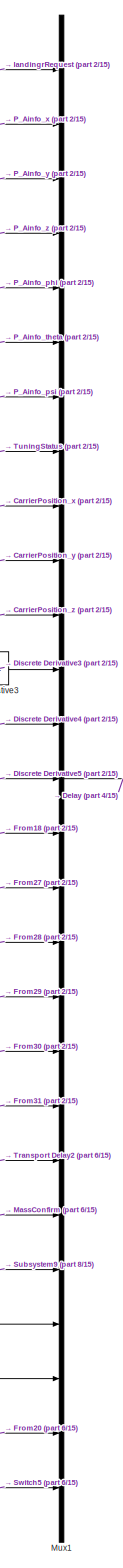
[diagram: root canvas - part 1/15, top right region]
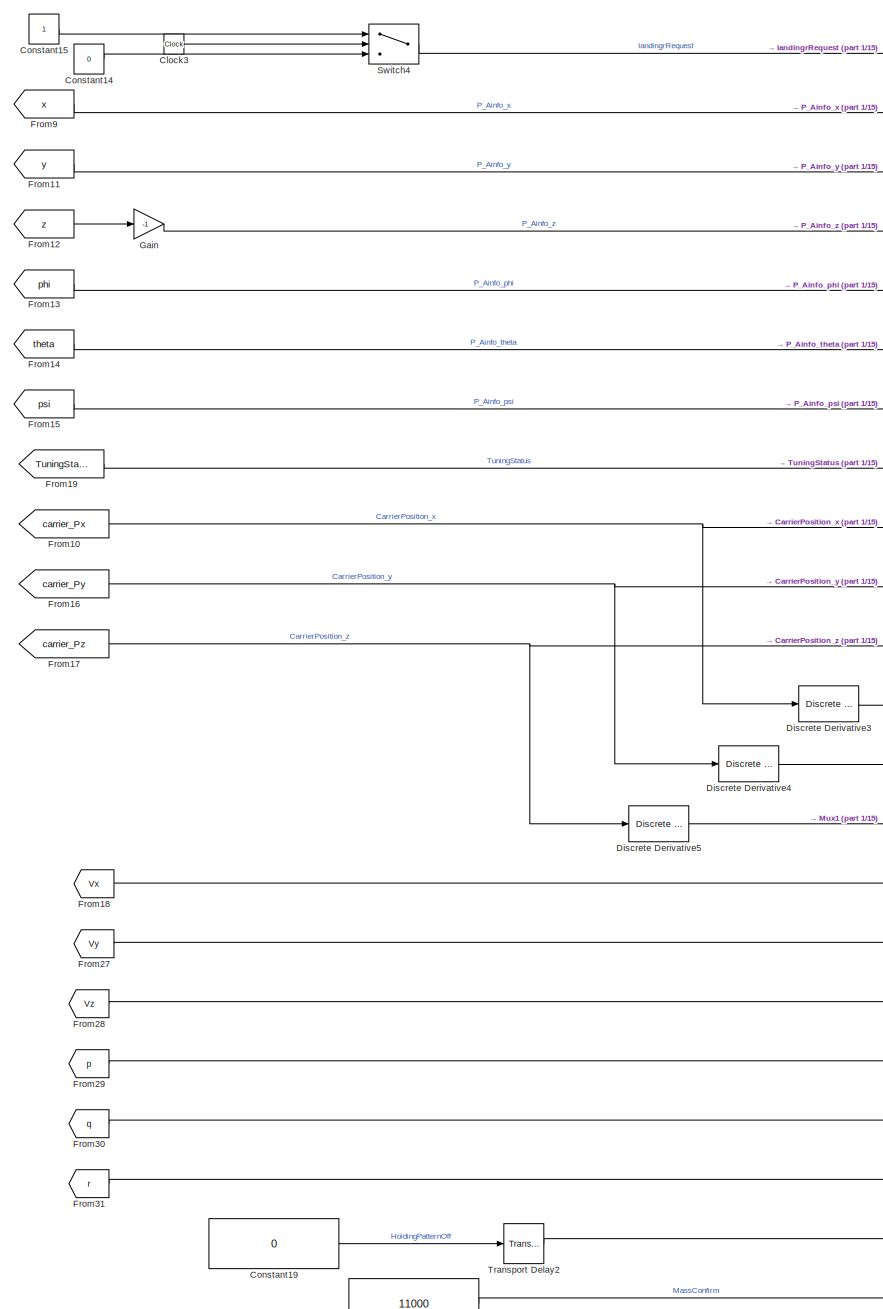
[diagram: root canvas - part 2/15, top right region]
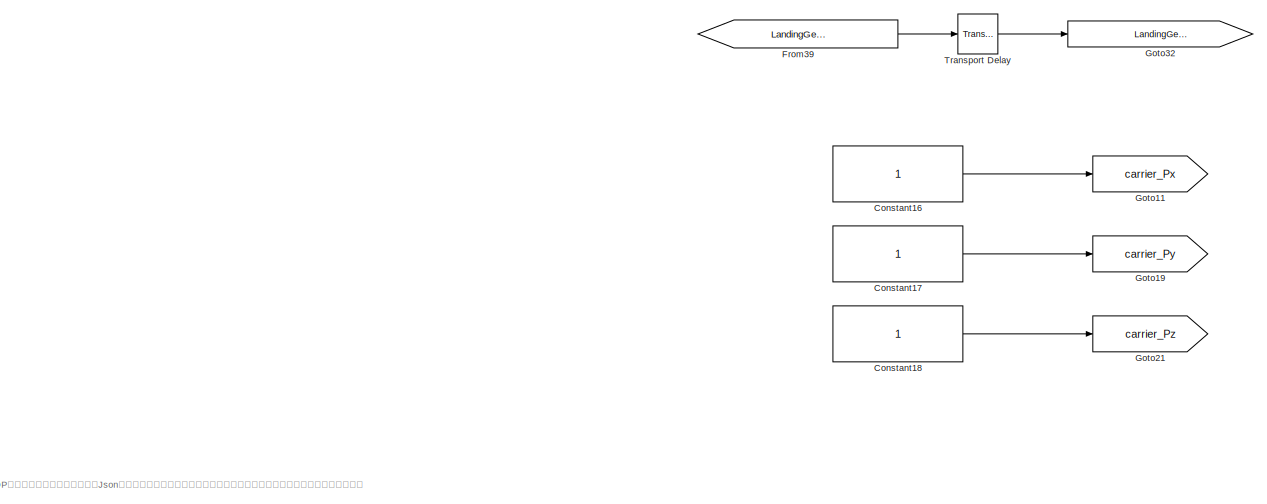
[diagram: root canvas - part 3/15, top left region]
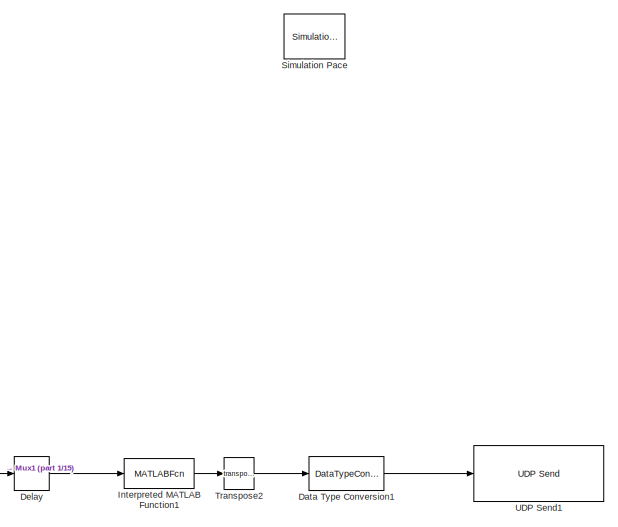
[diagram: root canvas - part 4/15, top right region]
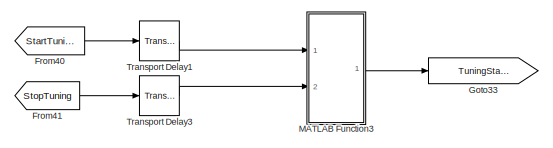
[diagram: root canvas - part 5/15, top left region]
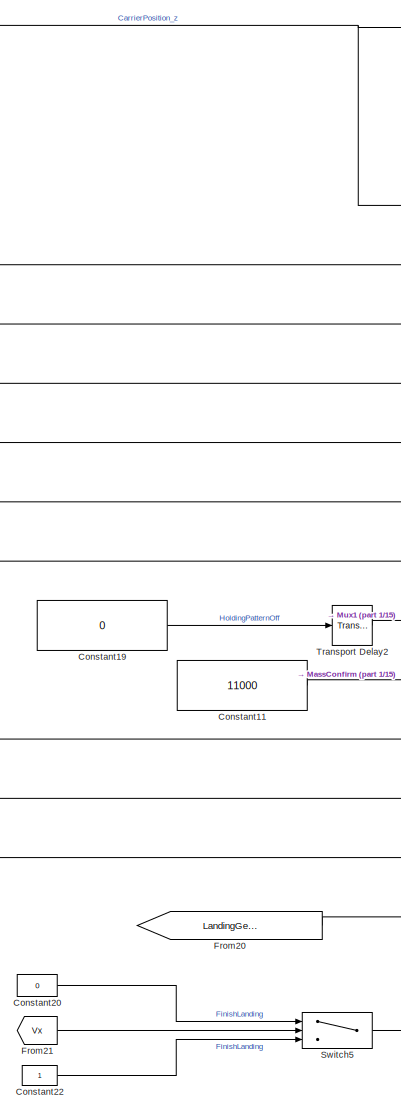
[diagram: root canvas - part 6/15, middle right region]
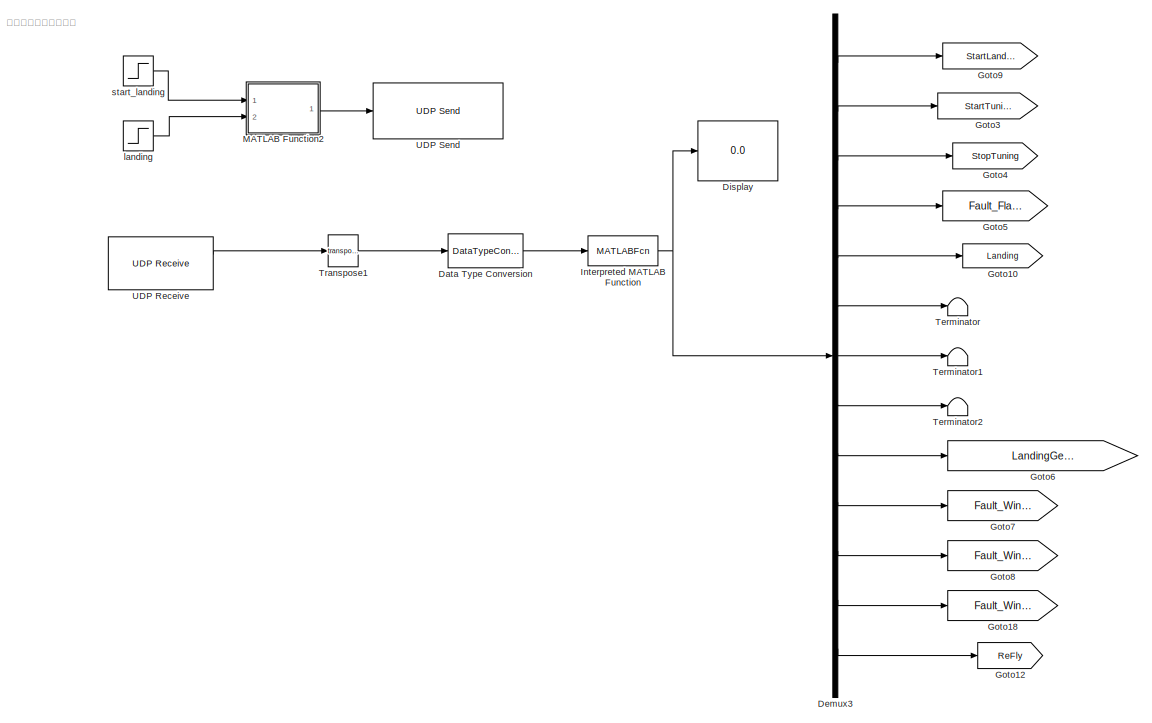
[diagram: root canvas - part 7/15, top left region]
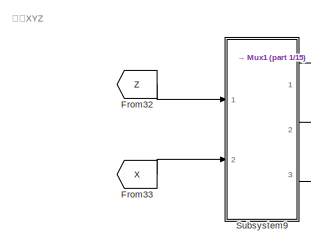
[diagram: root canvas - part 8/15, middle right region]
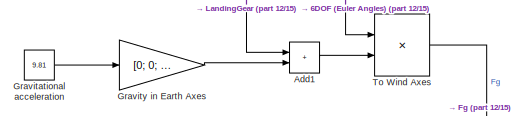
[diagram: root canvas - part 9/15, central region]
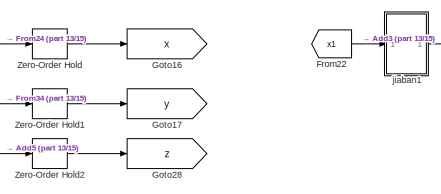
[diagram: root canvas - part 10/15, middle right region]
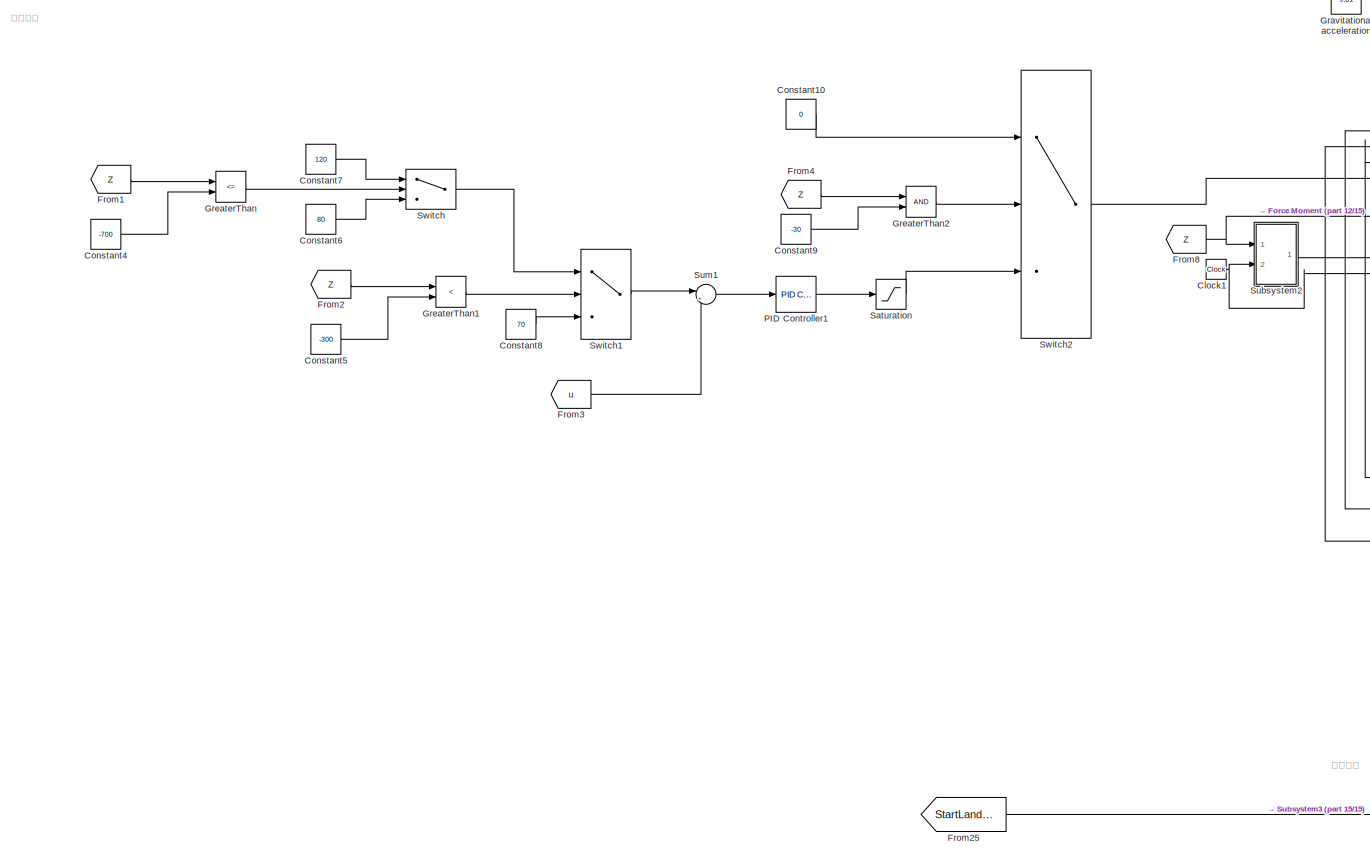
[diagram: root canvas - part 11/15, bottom left region]
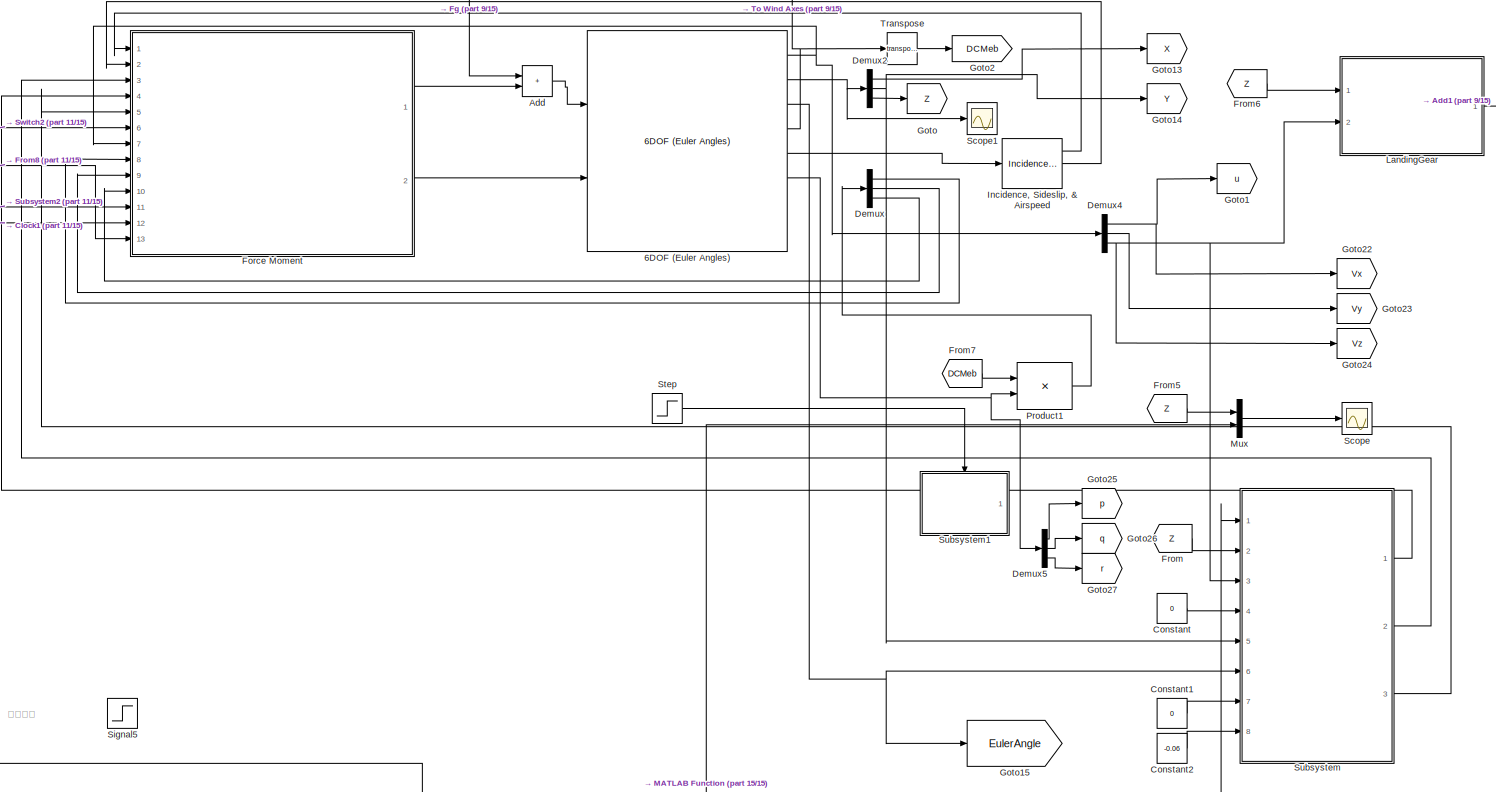
[diagram: root canvas - part 12/15, bottom center region]
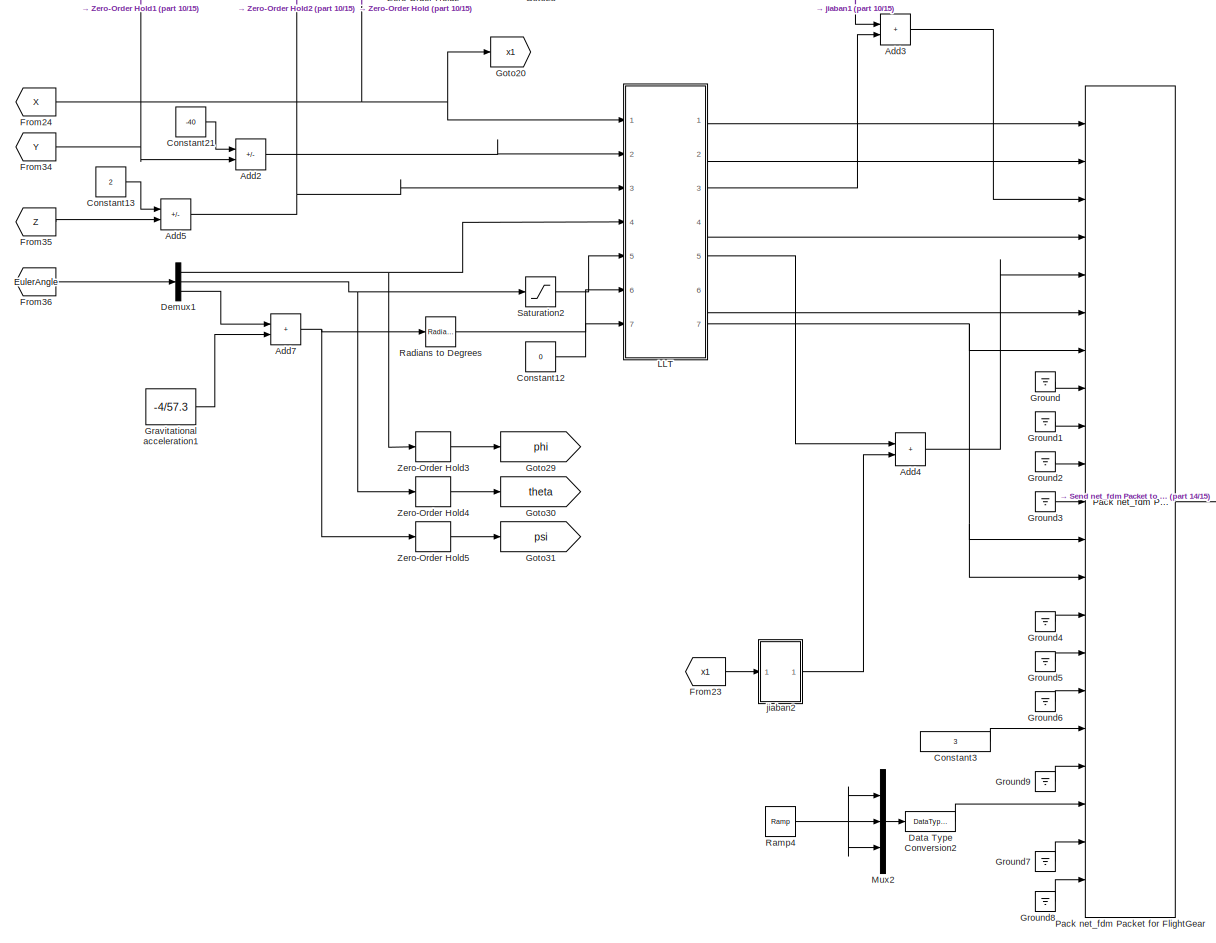
[diagram: root canvas - part 13/15, bottom right region]
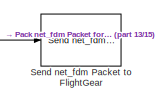
[diagram: root canvas - part 14/15, bottom right region]
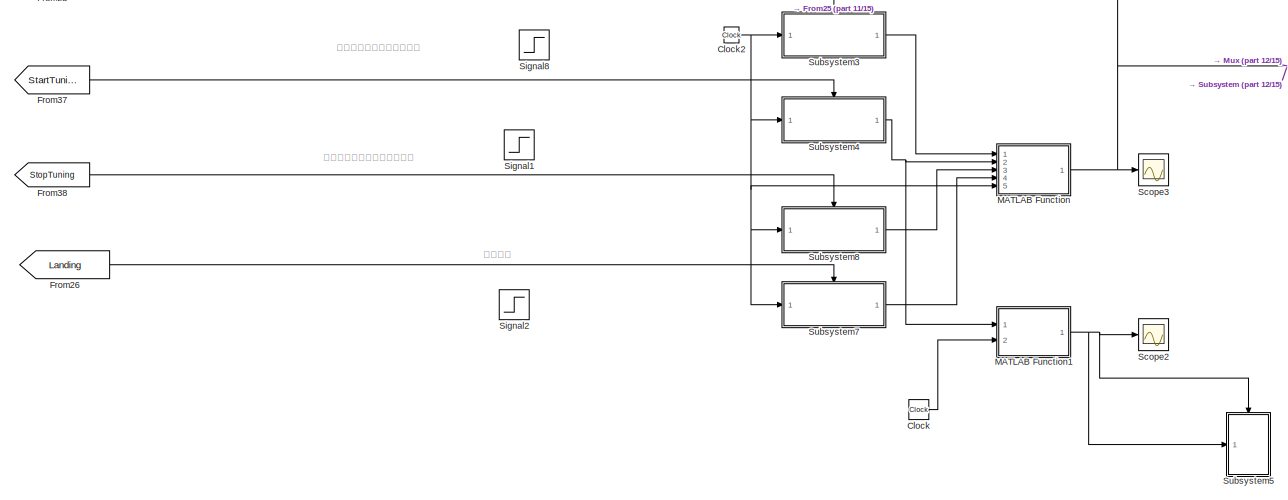
[diagram: root canvas - part 15/15, bottom left region]
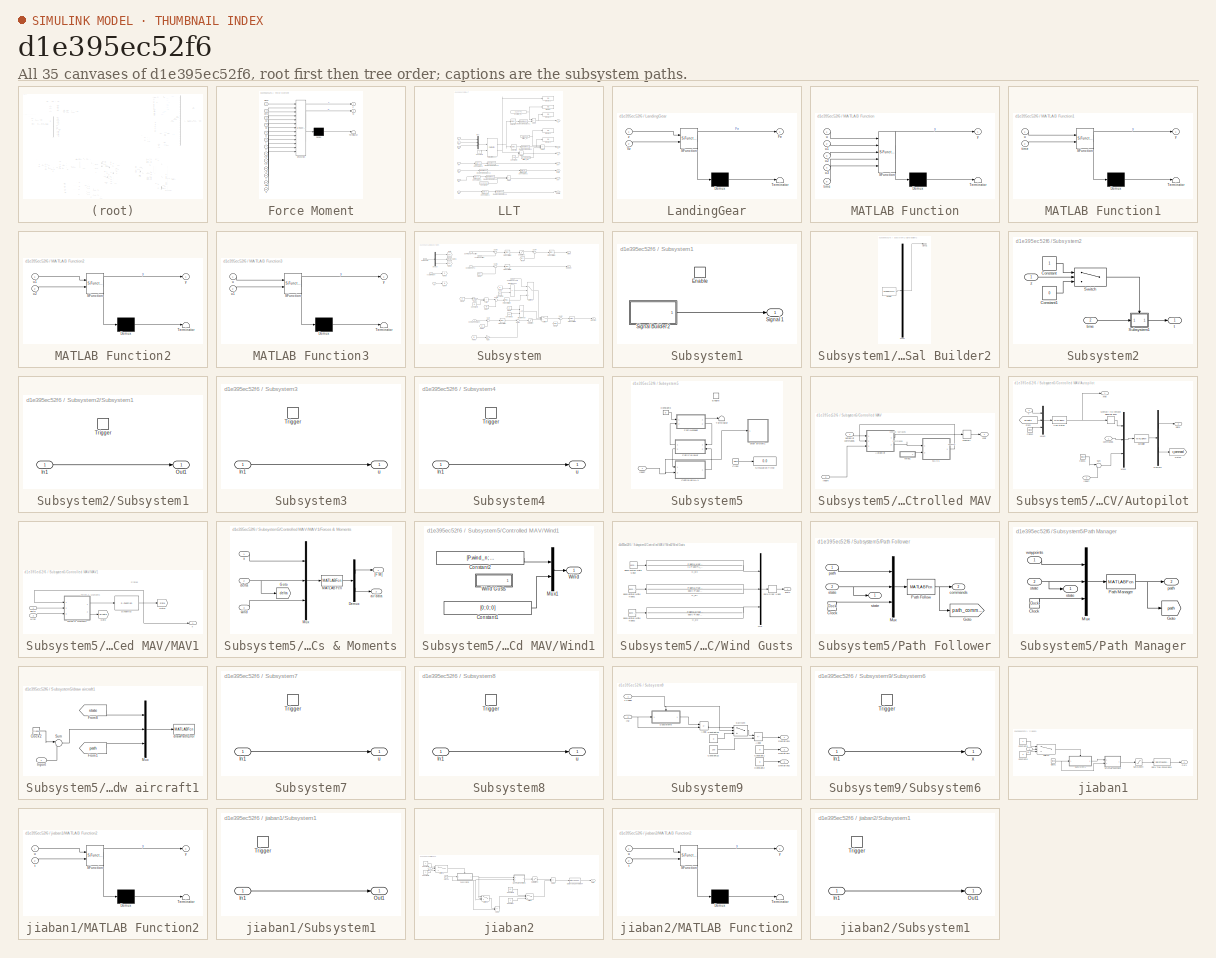
[diagram: thumbnail index - all 35 canvases of the model, root first then tree order]
MODEL slx_d1e395ec52f6
KIND model
CONFIG AbsTol = auto
CONFIG EnableMultiTasking = on
CONFIG FixedStep = auto
CONFIG InitFcn = param_chap10
CONFIG MaxStep = auto
CONFIG MinStep = auto
CONFIG RelTol = 1e-3
CONFIG SampleTimeConstraint = Unconstrained
CONFIG SolverName = ode15s
CONFIG StartTime = 0.0
CONFIG StopTime = 400
BLOCK [Reference] 6DOF (Euler Angles)  REF=shared6dof/6DOF (Euler Angles)
  Ports = [2, 8]
  SourceBlock = shared6dof/6DOF (Euler Angles)
  SourceProductBaseCode = AE,PW,MT,UV,VE,VP
  SourceType = 6DOF EoM (Body Axis)
BLOCK [Sum] Add
  IconShape = rectangular
  Ports = [2, 1]
BLOCK [Sum] Add1
  IconShape = rectangular
  Ports = [2, 1]
BLOCK [Sum] Add2
  IconShape = rectangular
  Inputs = -+
  Ports = [2, 1]
BLOCK [Sum] Add3
  IconShape = rectangular
  Ports = [2, 1]
BLOCK [Sum] Add4
  IconShape = rectangular
  Ports = [2, 1]
BLOCK [Sum] Add5
  IconShape = rectangular
  Inputs = -+
  Ports = [2, 1]
BLOCK [Sum] Add7
  IconShape = rectangular
  Ports = [2, 1]
BLOCK [Clock] Clock
BLOCK [Clock] Clock1
BLOCK [Clock] Clock2
BLOCK [Clock] Clock3
BLOCK [Constant] Constant
  Value = 0
BLOCK [Constant] Constant1
  Value = 0
BLOCK [Constant] Constant10
  Value = 0
BLOCK [Constant] Constant11
  Value = 11000
BLOCK [Constant] Constant12
  Value = 0
BLOCK [Constant] Constant13
  Value = 2
BLOCK [Constant] Constant14
  Value = 0
BLOCK [Constant] Constant15
BLOCK [Constant] Constant16
BLOCK [Constant] Constant17
BLOCK [Constant] Constant18
BLOCK [Constant] Constant19
  Value = 0
BLOCK [Constant] Constant2
  Value = -0.06
BLOCK [Constant] Constant20
  Value = 0
BLOCK [Constant] Constant21
  Value = -40
BLOCK [Constant] Constant22
BLOCK [Constant] Constant3
  OutDataTypeStr = uint32
  Value = 3
BLOCK [Constant] Constant4
  Value = -700
BLOCK [Constant] Constant5
  Value = -300
BLOCK [Constant] Constant6
  Value = 80
BLOCK [Constant] Constant7
  Value = 120
BLOCK [Constant] Constant8
  Value = 70
BLOCK [Constant] Constant9
  Value = -30
BLOCK [DataTypeConversion] Data Type Conversion
  OutDataTypeStr = double
  RndMeth = Floor
  SaturateOnIntegerOverflow = off
BLOCK [DataTypeConversion] Data Type Conversion1
  OutDataTypeStr = uint8
  RndMeth = Floor
  SaturateOnIntegerOverflow = off
BLOCK [DataTypeConversion] Data Type Conversion2
  OutDataTypeStr = single
  RndMeth = Floor
  SaturateOnIntegerOverflow = off
BLOCK [Delay] Delay
  DelayLength = 1
  InitialCondition = 0
  InputPortMap = u0
  Ports = [1, 1]
BLOCK [Demux] Demux
  Outputs = 3
  Ports = [1, 3]
BLOCK [Demux] Demux1
  Outputs = 3
  Ports = [1, 3]
BLOCK [Demux] Demux2
  Outputs = 3
  Ports = [1, 3]
BLOCK [Demux] Demux3
  Outputs = 13
  Ports = [1, 13]
BLOCK [Demux] Demux4
  Outputs = 3
  Ports = [1, 3]
BLOCK [Demux] Demux5
  Outputs = 3
  Ports = [1, 3]
BLOCK [Reference] Discrete Derivative3  REF=simulink/Discrete/Discrete Derivative
  Ports = [1, 1]
  SourceBlock = simulink/Discrete/Discrete Derivative
  SourceProductBaseCode = SL
  SourceType = Discrete Derivative
BLOCK [Reference] Discrete Derivative4  REF=simulink/Discrete/Discrete Derivative
  Ports = [1, 1]
  SourceBlock = simulink/Discrete/Discrete Derivative
  SourceProductBaseCode = SL
  SourceType = Discrete Derivative
BLOCK [Reference] Discrete Derivative5  REF=simulink/Discrete/Discrete Derivative
  Ports = [1, 1]
  SourceBlock = simulink/Discrete/Discrete Derivative
  SourceProductBaseCode = SL
  SourceType = Discrete Derivative
BLOCK [Display] Display
  Decimation = 1
  Ports = [1]
BLOCK [SubSystem] Force Moment
  ErrorFcn = Stateflow.Translate.translate
  PermitHierarchicalResolution = ExplicitOnly
  Ports = [13, 2]
  RequestExecContextInheritance = off
  SFBlockType = MATLAB Function
  TreatAsAtomicUnit = on
BLOCK [Demux] Force Moment/ Demux 
  Outputs = 1
  Ports = [1, 1]
BLOCK [S-Function] Force Moment/ SFunction 
  EnableBusSupport = on
  FunctionName = sf_sfun
  PortCounts = [13 3]
  Ports = [13, 3]
  SFcnIsStateOwnerBlock = off
  SFunctionDeploymentMode = off
  Tag = Stateflow S-Function 2
BLOCK [Terminator] Force Moment/ Terminator 
BLOCK [Outport] Force Moment/F
BLOCK [Outport] Force Moment/M
  Port = 2
BLOCK [Inport] Force Moment/T
  Port = 6
BLOCK [Inport] Force Moment/V
  Port = 7
BLOCK [Inport] Force Moment/alpha
BLOCK [Inport] Force Moment/beta
  Port = 2
BLOCK [Inport] Force Moment/da
  Port = 3
BLOCK [Inport] Force Moment/de
  Port = 4
BLOCK [Inport] Force Moment/dr
  Port = 5
BLOCK [Inport] Force Moment/p_B
  Port = 8
BLOCK [Inport] Force Moment/q_B
  Port = 9
BLOCK [Inport] Force Moment/r_B
  Port = 10
BLOCK [Inport] Force Moment/t
  Port = 11
BLOCK [Inport] Force Moment/time
  Port = 12
BLOCK [Inport] Force Moment/z
  Port = 13
BLOCK [From] From
  GotoTag = Z
BLOCK [From] From1
  GotoTag = Z
BLOCK [From] From10
  GotoTag = carrier_Px
BLOCK [From] From11
  GotoTag = y
BLOCK [From] From12
  GotoTag = z
BLOCK [From] From13
  GotoTag = phi
BLOCK [From] From14
  GotoTag = theta
BLOCK [From] From15
  GotoTag = psi
BLOCK [From] From16
  GotoTag = carrier_Py
BLOCK [From] From17
  GotoTag = carrier_Pz
BLOCK [From] From18
  GotoTag = Vx
BLOCK [From] From19
  GotoTag = TuningStatus
BLOCK [From] From2
  GotoTag = Z
BLOCK [From] From20
  GotoTag = LandingGear_status_toRhapsody
BLOCK [From] From21
  GotoTag = Vx
BLOCK [From] From22
  GotoTag = x1
BLOCK [From] From23
  GotoTag = x1
BLOCK [From] From24
  GotoTag = X
BLOCK [From] From25
  GotoTag = StartLanding
BLOCK [From] From26
  GotoTag = Landing
BLOCK [From] From27
  GotoTag = Vy
BLOCK [From] From28
  GotoTag = Vz
BLOCK [From] From29
  GotoTag = p
BLOCK [From] From3
  GotoTag = u
BLOCK [From] From30
  GotoTag = q
  NameLocation = top
BLOCK [From] From31
  GotoTag = r
BLOCK [From] From32
  GotoTag = Z
BLOCK [From] From33
  GotoTag = X
BLOCK [From] From34
  GotoTag = Y
BLOCK [From] From35
  GotoTag = Z
BLOCK [From] From36
  GotoTag = EulerAngle
BLOCK [From] From37
  GotoTag = StartTuning
BLOCK [From] From38
  GotoTag = StopTuning
BLOCK [From] From39
  GotoTag = LandingGear_status_fromRhapsody
BLOCK [From] From4
  GotoTag = Z
BLOCK [From] From40
  GotoTag = StartTuning
BLOCK [From] From41
  GotoTag = StopTuning
BLOCK [From] From5
  GotoTag = Z
BLOCK [From] From6
  GotoTag = Z
BLOCK [From] From7
  GotoTag = DCMeb
BLOCK [From] From8
  GotoTag = Z
BLOCK [From] From9
  GotoTag = x
BLOCK [Gain] Gain
  Gain = -1
BLOCK [Goto] Goto
  GotoTag = Z
BLOCK [Goto] Goto1
  GotoTag = u
BLOCK [Goto] Goto10
  GotoTag = Landing
BLOCK [Goto] Goto11
  GotoTag = carrier_Px
BLOCK [Goto] Goto12
  GotoTag = ReFly
BLOCK [Goto] Goto13
  GotoTag = X
BLOCK [Goto] Goto14
  GotoTag = Y
BLOCK [Goto] Goto15
  GotoTag = EulerAngle
BLOCK [Goto] Goto16
  GotoTag = x
BLOCK [Goto] Goto17
  GotoTag = y
BLOCK [Goto] Goto18
  GotoTag = Fault_Wind_z
BLOCK [Goto] Goto19
  GotoTag = carrier_Py
BLOCK [Goto] Goto2
  GotoTag = DCMeb
BLOCK [Goto] Goto20
  GotoTag = x1
BLOCK [Goto] Goto21
  GotoTag = carrier_Pz
BLOCK [Goto] Goto22
  GotoTag = Vx
BLOCK [Goto] Goto23
  GotoTag = Vy
BLOCK [Goto] Goto24
  GotoTag = Vz
BLOCK [Goto] Goto25
  GotoTag = p
BLOCK [Goto] Goto26
  GotoTag = q
BLOCK [Goto] Goto27
  GotoTag = r
BLOCK [Goto] Goto28
  GotoTag = z
BLOCK [Goto] Goto29
  GotoTag = phi
BLOCK [Goto] Goto3
  GotoTag = StartTuning
BLOCK [Goto] Goto30
  GotoTag = theta
BLOCK [Goto] Goto31
  GotoTag = psi
BLOCK [Goto] Goto32
  GotoTag = LandingGear_status_toRhapsody
BLOCK [Goto] Goto33
  GotoTag = TuningStatus
BLOCK [Goto] Goto4
  GotoTag = StopTuning
BLOCK [Goto] Goto5
  GotoTag = Fault_FlapJam
BLOCK [Goto] Goto6
  GotoTag = LandingGear_status_fromRhapsody
BLOCK [Goto] Goto7
  GotoTag = Fault_Wind_x
BLOCK [Goto] Goto8
  GotoTag = Fault_Wind_y
BLOCK [Goto] Goto9
  GotoTag = StartLanding
BLOCK [Constant] Gravitational acceleration
  Value = 9.81
BLOCK [Constant] Gravitational acceleration1
  Value = -4/57.3
BLOCK [Gain] Gravity in Earth Axes
  Gain = [0; 0; 11000]
  OutDataTypeStr = Inherit: Same as input
  ParamDataTypeStr = Inherit: Same as input
  SaturateOnIntegerOverflow = on
BLOCK [RelationalOperator] GreaterThan
  InputSameDT = off
  Operator = <=
  OutDataTypeStr = boolean
  Ports = [2, 1]
  RndMeth = Simplest
BLOCK [RelationalOperator] GreaterThan1
  InputSameDT = off
  Operator = <
  OutDataTypeStr = boolean
  Ports = [2, 1]
  RndMeth = Simplest
BLOCK [RelationalOperator] GreaterThan2
  InputSameDT = off
  OutDataTypeStr = boolean
  Ports = [2, 1]
  RndMeth = Simplest
BLOCK [Ground] Ground
BLOCK [Ground] Ground1
BLOCK [Ground] Ground2
BLOCK [Ground] Ground3
BLOCK [Ground] Ground4
BLOCK [Ground] Ground5
BLOCK [Ground] Ground6
BLOCK [Ground] Ground7
BLOCK [Ground] Ground8
BLOCK [Ground] Ground9
BLOCK [Reference] Incidence, Sideslip, & Airspeed  REF=aerolibasang/Incidence, Sideslip,
& Airspeed
  Ports = [1, 3]
  SourceBlock = aerolibasang/Incidence, Sideslip,\n& Airspeed
  SourceProductBaseCode = AE
  SourceType = Incidence,Sideslip,&Airspeed
BLOCK [MATLABFcn] Interpreted MATLAB Function
  MATLABFcn = js_decode_landing(u)
  Ports = [1, 1]
BLOCK [MATLABFcn] Interpreted MATLAB Function1
  MATLABFcn = js_encode_landing(u)
  Ports = [1, 1]
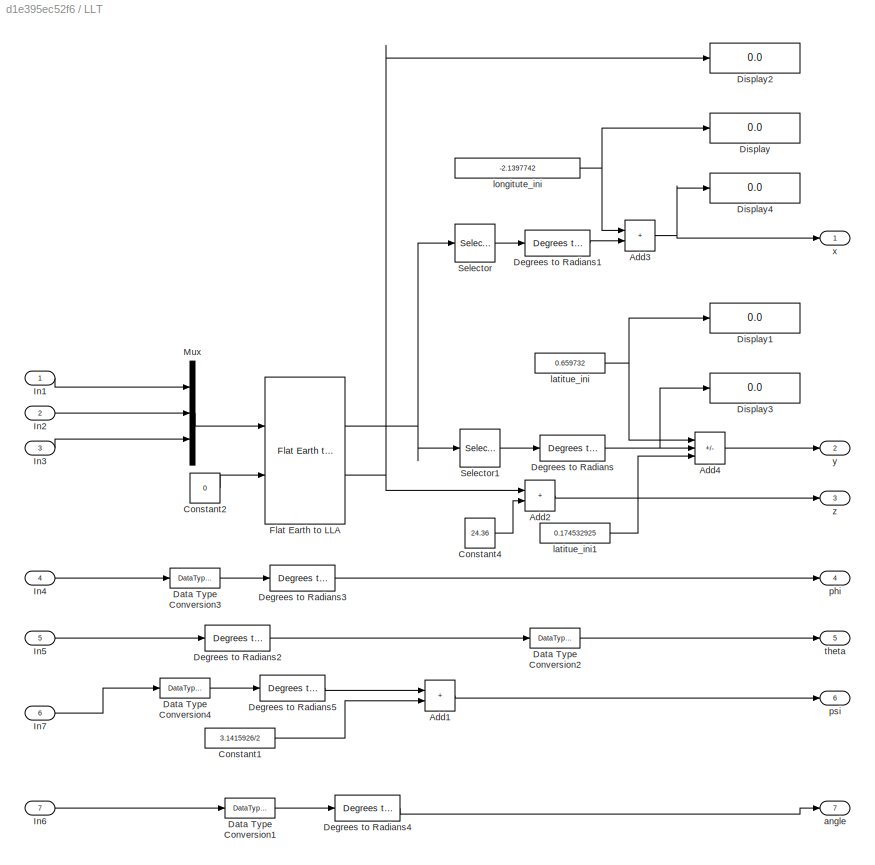
BLOCK [SubSystem] LLT
  Ports = [7, 7]
  RequestExecContextInheritance = off
BLOCK [Sum] LLT/Add1
  IconShape = rectangular
  Ports = [2, 1]
BLOCK [Sum] LLT/Add2
  IconShape = rectangular
  Ports = [2, 1]
BLOCK [Sum] LLT/Add3
  IconShape = rectangular
  Ports = [2, 1]
BLOCK [Sum] LLT/Add4
  IconShape = rectangular
  Inputs = ++-
  Ports = [3, 1]
BLOCK [Constant] LLT/Constant1
  OutDataTypeStr = single
  Value = 3.1415926/2
BLOCK [Constant] LLT/Constant2
  Value = 0
BLOCK [Constant] LLT/Constant4
  Value = 24.36
BLOCK [DataTypeConversion] LLT/Data Type Conversion1
  OutDataTypeStr = single
  RndMeth = Floor
  SaturateOnIntegerOverflow = off
BLOCK [DataTypeConversion] LLT/Data Type Conversion2
  OutDataTypeStr = single
  RndMeth = Floor
  SaturateOnIntegerOverflow = off
BLOCK [DataTypeConversion] LLT/Data Type Conversion3
  OutDataTypeStr = single
  RndMeth = Floor
  SaturateOnIntegerOverflow = off
BLOCK [DataTypeConversion] LLT/Data Type Conversion4
  OutDataTypeStr = single
  RndMeth = Floor
  SaturateOnIntegerOverflow = off
BLOCK [Reference] LLT/Degrees to Radians  REF=simulink_extras/Transformations/Degrees to
Radians
  Ports = [1, 1]
  SourceBlock = simulink_extras/Transformations/Degrees to\nRadians
  SourceProductBaseCode = SL
  SourceType = DegreesToRadians
BLOCK [Reference] LLT/Degrees to Radians1  REF=simulink_extras/Transformations/Degrees to
Radians
  Ports = [1, 1]
  SourceBlock = simulink_extras/Transformations/Degrees to\nRadians
  SourceProductBaseCode = SL
  SourceType = DegreesToRadians
BLOCK [Reference] LLT/Degrees to Radians2  REF=simulink_extras/Transformations/Degrees to
Radians
  Ports = [1, 1]
  SourceBlock = simulink_extras/Transformations/Degrees to\nRadians
  SourceProductBaseCode = SL
  SourceType = DegreesToRadians
BLOCK [Reference] LLT/Degrees to Radians3  REF=simulink_extras/Transformations/Degrees to
Radians
  Ports = [1, 1]
  SourceBlock = simulink_extras/Transformations/Degrees to\nRadians
  SourceProductBaseCode = SL
  SourceType = DegreesToRadians
BLOCK [Reference] LLT/Degrees to Radians4  REF=simulink_extras/Transformations/Degrees to
Radians
  Ports = [1, 1]
  SourceBlock = simulink_extras/Transformations/Degrees to\nRadians
  SourceProductBaseCode = SL
  SourceType = DegreesToRadians
BLOCK [Reference] LLT/Degrees to Radians5  REF=simulink_extras/Transformations/Degrees to
Radians
  Ports = [1, 1]
  SourceBlock = simulink_extras/Transformations/Degrees to\nRadians
  SourceProductBaseCode = SL
  SourceType = DegreesToRadians
BLOCK [Display] LLT/Display
  Decimation = 1
  Ports = [1]
BLOCK [Display] LLT/Display1
  Decimation = 1
  Ports = [1]
BLOCK [Display] LLT/Display2
  Decimation = 1
  Ports = [1]
BLOCK [Display] LLT/Display3
  Decimation = 1
  Format = long
  Ports = [1]
BLOCK [Display] LLT/Display4
  Decimation = 1
  Ports = [1]
BLOCK [Reference] LLT/Flat Earth to LLA  REF=aerolibtransform2/Flat Earth to LLA
  Ports = [2, 2]
  SourceBlock = aerolibtransform2/Flat Earth to LLA
  SourceProductBaseCode = AE
  SourceType = Flat Earth to LLA
BLOCK [Inport] LLT/In1
BLOCK [Inport] LLT/In2
  Port = 2
BLOCK [Inport] LLT/In3
  Port = 3
BLOCK [Inport] LLT/In4
  Port = 4
BLOCK [Inport] LLT/In5
  Port = 5
BLOCK [Inport] LLT/In6
  Port = 7
BLOCK [Inport] LLT/In7
  Port = 6
BLOCK [Mux] LLT/Mux
  DisplayOption = bar
  Inputs = 3
  Ports = [3, 1]
BLOCK [Selector] LLT/Selector
  IndexOptions = Index vector (dialog)
  Indices = [1]
  InputPortWidth = 2
  OutputSizes = 1
  Ports = [1, 1]
BLOCK [Selector] LLT/Selector1
  IndexOptions = Index vector (dialog)
  Indices = [2]
  InputPortWidth = 2
  OutputSizes = 1
  Ports = [1, 1]
BLOCK [Outport] LLT/angle
  Port = 7
BLOCK [Constant] LLT/latitue_ini
  LockScale = on
  OutDataTypeStr = double
  Value = 0.659732
BLOCK [Constant] LLT/latitue_ini1
  LockScale = on
  OutDataTypeStr = double
  Value = 0.174532925
BLOCK [Constant] LLT/longitute_ini
  LockScale = on
  OutDataTypeStr = double
  Value = -2.1397742
BLOCK [Outport] LLT/phi
  Port = 4
BLOCK [Outport] LLT/psi
  Port = 6
BLOCK [Outport] LLT/theta
  Port = 5
BLOCK [Outport] LLT/x
BLOCK [Outport] LLT/y
  Port = 2
BLOCK [Outport] LLT/z
  Port = 3
BLOCK [SubSystem] LandingGear
  ErrorFcn = Stateflow.Translate.translate
  PermitHierarchicalResolution = ExplicitOnly
  Ports = [2, 1]
  RequestExecContextInheritance = off
  SFBlockType = MATLAB Function
  TreatAsAtomicUnit = on
BLOCK [Demux] LandingGear/ Demux 
  Outputs = 1
  Ports = [1, 1]
BLOCK [S-Function] LandingGear/ SFunction 
  EnableBusSupport = on
  FunctionName = sf_sfun
  PortCounts = [2 2]
  Ports = [2, 2]
  SFcnIsStateOwnerBlock = off
  SFunctionDeploymentMode = off
  Tag = Stateflow S-Function 1
BLOCK [Terminator] LandingGear/ Terminator 
BLOCK [Outport] LandingGear/Fe
BLOCK [Inport] LandingGear/Vz
  Port = 2
BLOCK [Inport] LandingGear/z
BLOCK [SubSystem] MATLAB Function
  ErrorFcn = Stateflow.Translate.translate
  PermitHierarchicalResolution = ExplicitOnly
  Ports = [5, 1]
  RequestExecContextInheritance = off
  SFBlockType = MATLAB Function
  TreatAsAtomicUnit = on
BLOCK [Demux] MATLAB Function/ Demux 
  Outputs = 1
  Ports = [1, 1]
BLOCK [S-Function] MATLAB Function/ SFunction 
  EnableBusSupport = on
  FunctionName = sf_sfun
  PortCounts = [5 2]
  Ports = [5, 2]
  SFcnIsStateOwnerBlock = off
  SFunctionDeploymentMode = off
  Tag = Stateflow S-Function 4
BLOCK [Terminator] MATLAB Function/ Terminator 
BLOCK [Inport] MATLAB Function/time
  Port = 5
BLOCK [Inport] MATLAB Function/u
BLOCK [Inport] MATLAB Function/u1
  Port = 2
BLOCK [Inport] MATLAB Function/u2
  Port = 3
BLOCK [Inport] MATLAB Function/u3
  Port = 4
BLOCK [Outport] MATLAB Function/y
BLOCK [SubSystem] MATLAB Function1
  ErrorFcn = Stateflow.Translate.translate
  PermitHierarchicalResolution = ExplicitOnly
  Ports = [2, 1]
  RequestExecContextInheritance = off
  SFBlockType = MATLAB Function
  TreatAsAtomicUnit = on
BLOCK [Demux] MATLAB Function1/ Demux 
  Outputs = 1
  Ports = [1, 1]
BLOCK [S-Function] MATLAB Function1/ SFunction 
  EnableBusSupport = on
  FunctionName = sf_sfun
  PortCounts = [2 2]
  Ports = [2, 2]
  SFcnIsStateOwnerBlock = off
  SFunctionDeploymentMode = off
  Tag = Stateflow S-Function 3
BLOCK [Terminator] MATLAB Function1/ Terminator 
BLOCK [Inport] MATLAB Function1/time
  Port = 2
BLOCK [Inport] MATLAB Function1/u
BLOCK [Outport] MATLAB Function1/y
BLOCK [SubSystem] MATLAB Function2
  Commented = on
  ErrorFcn = Stateflow.Translate.translate
  PermitHierarchicalResolution = ExplicitOnly
  Ports = [2, 1]
  RequestExecContextInheritance = off
  SFBlockType = MATLAB Function
  TreatAsAtomicUnit = on
BLOCK [Demux] MATLAB Function2/ Demux 
  Outputs = 1
  Ports = [1, 1]
BLOCK [S-Function] MATLAB Function2/ SFunction 
  EnableBusSupport = on
  FunctionName = sf_sfun
  PortCounts = [2 2]
  Ports = [2, 2]
  SFcnIsStateOwnerBlock = off
  SFunctionDeploymentMode = off
  Tag = Stateflow S-Function 5
BLOCK [Terminator] MATLAB Function2/ Terminator 
BLOCK [Inport] MATLAB Function2/u1
BLOCK [Inport] MATLAB Function2/u2
  Port = 2
BLOCK [Outport] MATLAB Function2/y
BLOCK [SubSystem] MATLAB Function3
  ErrorFcn = Stateflow.Translate.translate
  PermitHierarchicalResolution = ExplicitOnly
  Ports = [2, 1]
  RequestExecContextInheritance = off
  SFBlockType = MATLAB Function
  TreatAsAtomicUnit = on
BLOCK [Demux] MATLAB Function3/ Demux 
  Outputs = 1
  Ports = [1, 1]
BLOCK [S-Function] MATLAB Function3/ SFunction 
  EnableBusSupport = on
  FunctionName = sf_sfun
  PortCounts = [2 2]
  Ports = [2, 2]
  SFcnIsStateOwnerBlock = off
  SFunctionDeploymentMode = off
  Tag = Stateflow S-Function 8
BLOCK [Terminator] MATLAB Function3/ Terminator 
BLOCK [Inport] MATLAB Function3/u
BLOCK [Inport] MATLAB Function3/u1
  Port = 2
BLOCK [Outport] MATLAB Function3/y
BLOCK [Mux] Mux
  DisplayOption = bar
  Inputs = 2
  Ports = [2, 1]
BLOCK [Mux] Mux1
  DisplayOption = bar
  Inputs = 27
  Ports = [27, 1]
BLOCK [Mux] Mux2
  DisplayOption = bar
  Inputs = 3
  Ports = [3, 1]
BLOCK [Reference] PID Controller1  REF=pid_lib/PID Controller
  Ports = [1, 1]
  SourceBlock = pid_lib/PID Controller
  SourceProductBaseCode = SL
  SourceType = PID 1dof
BLOCK [Reference] Pack net_fdm Packet for FlightGear  REF=aerolibfltsims/Pack
net_fdm Packet
for FlightGear
  AttributesFormatString = Version Selected: %<FlightGearVersion>
  Ports = [21, 1]
  SourceBlock = aerolibfltsims/Pack\nnet_fdm Packet\nfor FlightGear
  SourceProductBaseCode = AE
  SourceType = FlightGearPackNetFdm
BLOCK [Product] Product1
  Multiplication = Matrix(*)
  Ports = [2, 1]
BLOCK [Reference] Radians to Degrees  REF=simulink_extras/Transformations/Radians
to Degrees
  Ports = [1, 1]
  SourceBlock = simulink_extras/Transformations/Radians\nto Degrees
  SourceProductBaseCode = SL
  SourceType = RadiansToDegrees
BLOCK [Reference] Ramp4  REF=simulink/Sources/Ramp
  Ports = [0, 1]
  SourceBlock = simulink/Sources/Ramp
  SourceProductBaseCode = SL
  SourceType = Ramp
BLOCK [Saturate] Saturation
  LowerLimit = 0
  UpperLimit = 40000
BLOCK [Saturate] Saturation2
  UpperLimit = 20
BLOCK [Scope] Scope
  Floating = off
  NumInputPorts = 1
  Ports = [1]
  ScopeSpecificationString = Simulink.scopes.TimeScopeBlockCfg('CurrentConfiguration', extmgr.ConfigurationSet(extmgr.Configuration('Core','General UI',true),extmgr.Configuration('Core','Source UI',true),extmgr.Configuration('Sources','WiredSimulink',true,'DataLoggingVariableName','ScopeData1'),extmgr.Configuration('Visuals','Time Domain',true,'SerializedDisplays',{struct('MinYLimReal','-1125.13521','MaxYLimReal','126.21638',...<+1750ch>
BLOCK [Scope] Scope1
  Floating = off
  NumInputPorts = 1
  Ports = [1]
  ScopeSpecificationString = Simulink.scopes.TimeScopeBlockCfg('CurrentConfiguration', extmgr.ConfigurationSet(extmgr.Configuration('Core','General UI',true),extmgr.Configuration('Core','Source UI',true),extmgr.Configuration('Sources','WiredSimulink',true,'DataLoggingVariableName','ScopeData2','DataLogging',true),extmgr.Configuration('Visuals','Time Domain',true,'SerializedDisplays',{struct('MinYLimReal','-1125.00000','MaxYLi...<+1902ch>
BLOCK [Scope] Scope2
  Floating = off
  NumInputPorts = 1
  Ports = [1]
  ScopeSpecificationString = Simulink.scopes.TimeScopeBlockCfg('CurrentConfiguration', extmgr.ConfigurationSet(extmgr.Configuration('Core','General UI',true),extmgr.Configuration('Core','Source UI',true),extmgr.Configuration('Sources','WiredSimulink',true,'DataLoggingVariableName','ScopeData5'),extmgr.Configuration('Visuals','Time Domain',true,'SerializedDisplays',{struct('MinYLimReal','-2.75','MaxYLimReal','24.75','YLabelRea...<+1435ch>
BLOCK [Scope] Scope3
  Floating = off
  NumInputPorts = 1
  Ports = [1]
  ScopeSpecificationString = Simulink.scopes.TimeScopeBlockCfg('CurrentConfiguration', extmgr.ConfigurationSet(extmgr.Configuration('Core','General UI',true),extmgr.Configuration('Core','Source UI',true),extmgr.Configuration('Sources','WiredSimulink',true,'DataLoggingVariableName','ScopeData3'),extmgr.Configuration('Visuals','Time Domain',true,'SerializedDisplays',{struct('MinYLimReal','-675.00000','MaxYLimReal','75.00000','Y...<+1748ch>
BLOCK [Reference] Send net_fdm Packet to FlightGear  REF=aerolibfltsims/Send
net_fdm Packet
to FlightGear
  Ports = [1]
  SourceBlock = aerolibfltsims/Send\nnet_fdm Packet\nto FlightGear
  SourceProductBaseCode = AE
  SourceType = FlightGearSendNetFdm
BLOCK [Step] Signal1
  SampleTime = 0
  Time = 150
BLOCK [Step] Signal2
  SampleTime = 0
  Time = 165
BLOCK [Step] Signal5
  SampleTime = 0
  Time = 2
BLOCK [Step] Signal8
  SampleTime = 0
  Time = 20
BLOCK [Reference] Simulation Pace  REF=aerolibanimutils/Simulation Pace
  AttributesFormatString = %<SleepMode>\n%<SimulationPace> sec/sec
  Ports = []
  SourceBlock = aerolibanimutils/Simulation Pace
  SourceProductBaseCode = AE
  SourceType = Simulation Pace
BLOCK [Step] Step
  After = 2
  SampleTime = 0
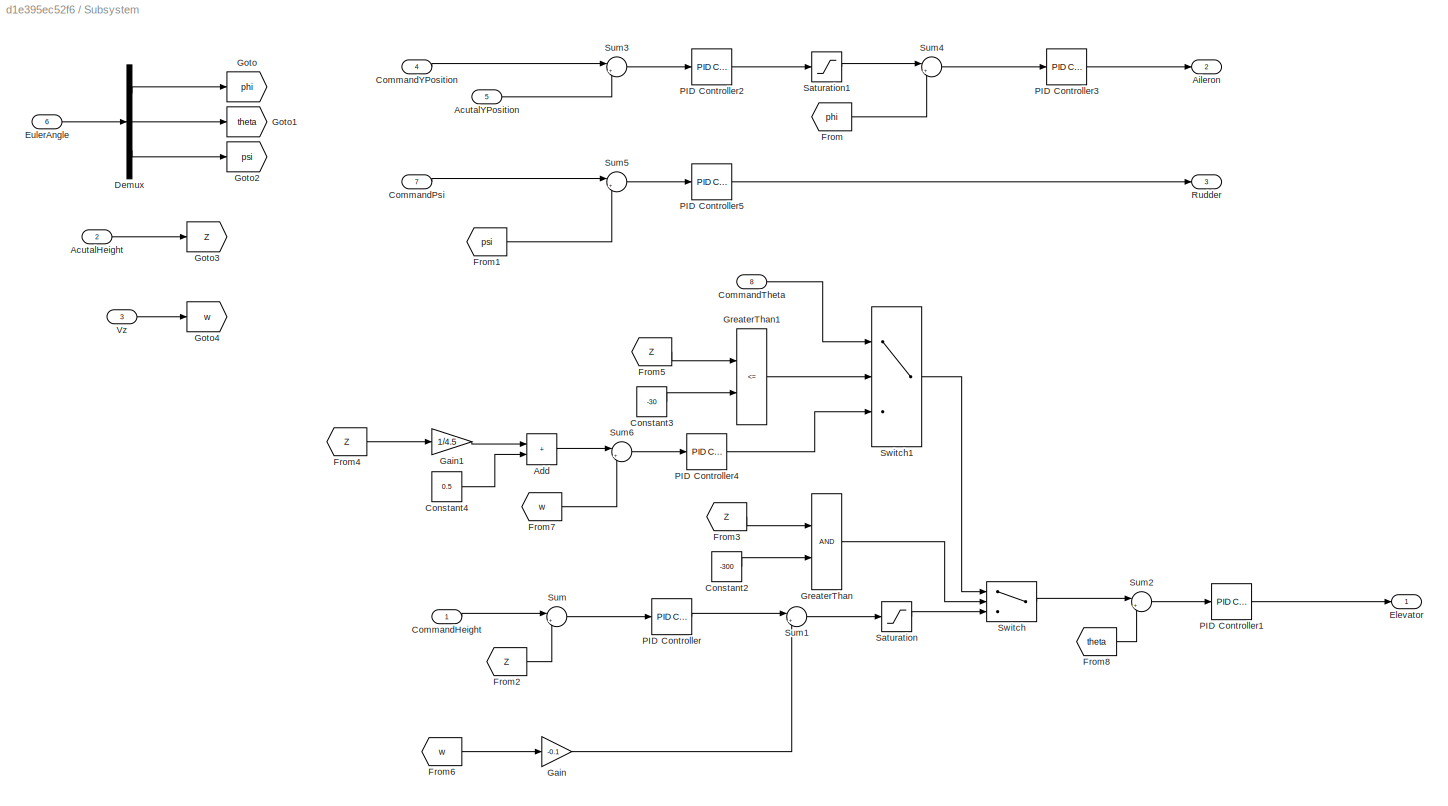
BLOCK [SubSystem] Subsystem
  Ports = [8, 3]
  RequestExecContextInheritance = off
BLOCK [Inport] Subsystem/AcutalHeight
  Port = 2
BLOCK [Inport] Subsystem/AcutalYPosition
  Port = 5
BLOCK [Sum] Subsystem/Add
  IconShape = rectangular
  Ports = [2, 1]
BLOCK [Outport] Subsystem/Aileron
  Port = 2
BLOCK [Inport] Subsystem/CommandHeight
BLOCK [Inport] Subsystem/CommandPsi
  Port = 7
BLOCK [Inport] Subsystem/CommandTheta
  Port = 8
BLOCK [Inport] Subsystem/CommandYPosition
  Port = 4
BLOCK [Constant] Subsystem/Constant2
  Value = -300
BLOCK [Constant] Subsystem/Constant3
  Value = -30
BLOCK [Constant] Subsystem/Constant4
  Value = 0.5
BLOCK [Demux] Subsystem/Demux
  Outputs = 3
  Ports = [1, 3]
BLOCK [Outport] Subsystem/Elevator
BLOCK [Inport] Subsystem/EulerAngle
  Port = 6
BLOCK [From] Subsystem/From
  GotoTag = phi
BLOCK [From] Subsystem/From1
  GotoTag = psi
BLOCK [From] Subsystem/From2
  GotoTag = Z
BLOCK [From] Subsystem/From3
  GotoTag = Z
BLOCK [From] Subsystem/From4
  GotoTag = Z
BLOCK [From] Subsystem/From5
  GotoTag = Z
BLOCK [From] Subsystem/From6
  GotoTag = w
BLOCK [From] Subsystem/From7
  GotoTag = w
BLOCK [From] Subsystem/From8
  GotoTag = theta
BLOCK [Gain] Subsystem/Gain
  Gain = -0.1
BLOCK [Gain] Subsystem/Gain1
  Gain = 1/4.5
BLOCK [Goto] Subsystem/Goto
  GotoTag = phi
BLOCK [Goto] Subsystem/Goto1
  GotoTag = theta
BLOCK [Goto] Subsystem/Goto2
  GotoTag = psi
BLOCK [Goto] Subsystem/Goto3
  GotoTag = Z
BLOCK [Goto] Subsystem/Goto4
  GotoTag = w
BLOCK [RelationalOperator] Subsystem/GreaterThan
  InputSameDT = off
  OutDataTypeStr = boolean
  Ports = [2, 1]
  RndMeth = Simplest
BLOCK [RelationalOperator] Subsystem/GreaterThan1
  InputSameDT = off
  Operator = <=
  OutDataTypeStr = boolean
  Ports = [2, 1]
  RndMeth = Simplest
BLOCK [Reference] Subsystem/PID Controller  REF=pid_lib/PID Controller
  Ports = [1, 1]
  SourceBlock = pid_lib/PID Controller
  SourceProductBaseCode = SL
  SourceType = PID 1dof
BLOCK [Reference] Subsystem/PID Controller1  REF=pid_lib/PID Controller
  Ports = [1, 1]
  SourceBlock = pid_lib/PID Controller
  SourceProductBaseCode = SL
  SourceType = PID 1dof
BLOCK [Reference] Subsystem/PID Controller2  REF=pid_lib/PID Controller
  Ports = [1, 1]
  SourceBlock = pid_lib/PID Controller
  SourceProductBaseCode = SL
  SourceType = PID 1dof
BLOCK [Reference] Subsystem/PID Controller3  REF=pid_lib/PID Controller
  Ports = [1, 1]
  SourceBlock = pid_lib/PID Controller
  SourceProductBaseCode = SL
  SourceType = PID 1dof
BLOCK [Reference] Subsystem/PID Controller4  REF=pid_lib/PID Controller
  Ports = [1, 1]
  SourceBlock = pid_lib/PID Controller
  SourceProductBaseCode = SL
  SourceType = PID 1dof
BLOCK [Reference] Subsystem/PID Controller5  REF=pid_lib/PID Controller
  Ports = [1, 1]
  SourceBlock = pid_lib/PID Controller
  SourceProductBaseCode = SL
  SourceType = PID 1dof
BLOCK [Outport] Subsystem/Rudder
  Port = 3
BLOCK [Saturate] Subsystem/Saturation
  LowerLimit = -0.3
  UpperLimit = 0.3
BLOCK [Saturate] Subsystem/Saturation1
  LowerLimit = -0.3
  UpperLimit = 0.3
BLOCK [Sum] Subsystem/Sum
  Inputs = |+-
  Ports = [2, 1]
BLOCK [Sum] Subsystem/Sum1
  Inputs = |+-
  Ports = [2, 1]
BLOCK [Sum] Subsystem/Sum2
  Inputs = |+-
  Ports = [2, 1]
BLOCK [Sum] Subsystem/Sum3
  Inputs = |+-
  Ports = [2, 1]
BLOCK [Sum] Subsystem/Sum4
  Inputs = |+-
  Ports = [2, 1]
BLOCK [Sum] Subsystem/Sum5
  Inputs = |+-
  Ports = [2, 1]
BLOCK [Sum] Subsystem/Sum6
  Inputs = |+-
  Ports = [2, 1]
BLOCK [Switch] Subsystem/Switch
  Criteria = u2 > Threshold
  InputSameDT = off
  SaturateOnIntegerOverflow = off
BLOCK [Switch] Subsystem/Switch1
  Criteria = u2 > Threshold
  InputSameDT = off
  SaturateOnIntegerOverflow = off
BLOCK [Inport] Subsystem/Vz
  Port = 3
BLOCK [SubSystem] Subsystem1
  Ports = [0, 1, 1]
  RequestExecContextInheritance = off
BLOCK [EnablePort] Subsystem1/Enable
  Ports = []
BLOCK [Outport] Subsystem1/Signal 1
  InitialOutput = -600
BLOCK [SubSystem] Subsystem1/Signal Builder2
  ClipboardFcn = sigbuilder_block('clipboard');
  CloseFcn = sigbuilder_block('close');
  ContinueFcn = sigbuilder_block('continue');
  CopyFcn = sigbuilder_block('copy');
  DeleteFcn = sigbuilder_block('delete');
  LoadFcn = sigbuilder_block('load');
  MaskHideContents = on
  ModelCloseFcn = sigbuilder_block('modelClose');
  NameChangeFcn = sigbuilder_block('namechange');
  OpenFcn = sigbuilder_block('open',[9.6 245.4 460.2 318.6 ]);
  PauseFcn = sigbuilder_block('pause');
  Ports = [0, 1]
  PreSaveFcn = sigbuilder_block('preSave');
  RequestExecContextInheritance = off
  StartFcn = sigbuilder_block('start');
  StopFcn = sigbuilder_block('stop');
  Tag = STV Subsys
BLOCK [Demux] Subsystem1/Signal Builder2/Demux
  DisplayOption = none
  Outputs = 1
  Ports = [1, 1]
  Tag = STV Demux
BLOCK [FromWorkspace] Subsystem1/Signal Builder2/FromWs
  Tag = STV FromWs
  VariableName = tuvar
BLOCK [Outport] Subsystem1/Signal Builder2/Signal 1
  Tag = STV Outport
BLOCK [SubSystem] Subsystem2
  Ports = [2, 1]
  RequestExecContextInheritance = off
BLOCK [Constant] Subsystem2/Constant
BLOCK [Constant] Subsystem2/Constant1
  Value = 0
BLOCK [SubSystem] Subsystem2/Subsystem1
  Ports = [1, 1, 0, 1]
  RequestExecContextInheritance = off
BLOCK [Inport] Subsystem2/Subsystem1/In1
BLOCK [Outport] Subsystem2/Subsystem1/Out1
  InitialOutput = 100
BLOCK [TriggerPort] Subsystem2/Subsystem1/Trigger
  PortDimensions = 1
  Ports = []
  StatesWhenEnabling = held
  VariantControl = Variant
BLOCK [Switch] Subsystem2/Switch
  InputSameDT = off
  SaturateOnIntegerOverflow = off
  Threshold = -1
BLOCK [Outport] Subsystem2/t
BLOCK [Inport] Subsystem2/time
  Port = 2
BLOCK [Inport] Subsystem2/z
BLOCK [SubSystem] Subsystem3
  Ports = [1, 1, 0, 1]
  RequestExecContextInheritance = off
BLOCK [Inport] Subsystem3/In1
BLOCK [TriggerPort] Subsystem3/Trigger
  PortDimensions = 1
  Ports = []
  StatesWhenEnabling = held
  VariantControl = Variant
BLOCK [Outport] Subsystem3/u
BLOCK [SubSystem] Subsystem4
  Ports = [1, 1, 0, 1]
  RequestExecContextInheritance = off
BLOCK [Inport] Subsystem4/In1
BLOCK [TriggerPort] Subsystem4/Trigger
  PortDimensions = 1
  Ports = []
  StatesWhenEnabling = held
  VariantControl = Variant
BLOCK [Outport] Subsystem4/u
BLOCK [SubSystem] Subsystem5
  Ports = [1, 0, 1]
  RequestExecContextInheritance = off
BLOCK [Clock] Subsystem5/Clock
BLOCK [Constant] Subsystem5/Constant3
  Value = 0
BLOCK [SubSystem] Subsystem5/Controlled MAV
  Ports = [2, 1]
  RequestExecContextInheritance = off
BLOCK [SubSystem] Subsystem5/Controlled MAV/Autopilot
  Ports = [3, 2]
  RequestExecContextInheritance = off
BLOCK [Clock] Subsystem5/Controlled MAV/Autopilot/Clock1
BLOCK [Clock] Subsystem5/Controlled MAV/Autopilot/Clock2
BLOCK [Demux] Subsystem5/Controlled MAV/Autopilot/Demux1
  Outputs = [4;12]
  Ports = [1, 2]
BLOCK [From] Subsystem5/Controlled MAV/Autopilot/From
  GotoTag = airdata
  TagVisibility = global
BLOCK [Goto] Subsystem5/Controlled MAV/Autopilot/Goto3
  GotoTag = x_command
  TagVisibility = global
BLOCK [Inport] Subsystem5/Controlled MAV/Autopilot/Inport
  Port = 3
BLOCK [Memory] Subsystem5/Controlled MAV/Autopilot/Memory (to remove algebraic loop)
BLOCK [Mux] Subsystem5/Controlled MAV/Autopilot/Mux1
  DisplayOption = bar
  Inputs = 3
  Ports = [3, 1]
BLOCK [Mux] Subsystem5/Controlled MAV/Autopilot/Mux3
  DisplayOption = bar
  Inputs = 3
  Ports = [3, 1]
BLOCK [Sum] Subsystem5/Controlled MAV/Autopilot/Sum
  Inputs = |+-
  Ports = [2, 1]
BLOCK [MATLABFcn] Subsystem5/Controlled MAV/Autopilot/autopilot
  MATLABFcn = autopilot(u,P)
  OutputDimensions = 4+12
  Ports = [1, 1]
  SampleTime = P.Ts
BLOCK [Inport] Subsystem5/Controlled MAV/Autopilot/commands
BLOCK [Outport] Subsystem5/Controlled MAV/Autopilot/delta
  Port = 2
BLOCK [MATLABFcn] Subsystem5/Controlled MAV/Autopilot/true states
  MATLABFcn = true_states(u,P)
  OutputDimensions = 19
  Ports = [1, 1]
  SampleTime = P.Ts
BLOCK [Inport] Subsystem5/Controlled MAV/Autopilot/x
  Port = 2
BLOCK [Outport] Subsystem5/Controlled MAV/Autopilot/xhat
BLOCK [Inport] Subsystem5/Controlled MAV/Inport
  Port = 2
BLOCK [SubSystem] Subsystem5/Controlled MAV/MAV1
  Ports = [2, 1]
  RequestExecContextInheritance = off
BLOCK [S-Function] Subsystem5/Controlled MAV/MAV1/Dynamics
  EnableBusSupport = off
  FunctionName = mav_dynamics
  Parameters = P
  Ports = [1, 1]
  SFcnIsStateOwnerBlock = off
  SFunctionDeploymentMode = off
BLOCK [SubSystem] Subsystem5/Controlled MAV/MAV1/Forces & Moments
  Ports = [3, 2]
  RequestExecContextInheritance = off
BLOCK [Demux] Subsystem5/Controlled MAV/MAV1/Forces & Moments/Demux
  Outputs = [6;6]
  Ports = [1, 2]
BLOCK [Goto] Subsystem5/Controlled MAV/MAV1/Forces & Moments/Goto
  GotoTag = delta
  TagVisibility = global
BLOCK [MATLABFcn] Subsystem5/Controlled MAV/MAV1/Forces & Moments/MATLAB Fcn
  MATLABFcn = forces_moments(u(1:12),u(13:16),u(17:22),P)
  OutputDimensions = 12
  Ports = [1, 1]
BLOCK [Mux] Subsystem5/Controlled MAV/MAV1/Forces & Moments/Mux
  DisplayOption = bar
  Inputs = 3
  Ports = [3, 1]
BLOCK [Outport] Subsystem5/Controlled MAV/MAV1/Forces & Moments/[F M]
BLOCK [Outport] Subsystem5/Controlled MAV/MAV1/Forces & Moments/air data
  Port = 2
BLOCK [Inport] Subsystem5/Controlled MAV/MAV1/Forces & Moments/delta
  Port = 2
BLOCK [Inport] Subsystem5/Controlled MAV/MAV1/Forces & Moments/wind
  Port = 3
BLOCK [Inport] Subsystem5/Controlled MAV/MAV1/Forces & Moments/x
BLOCK [Goto] Subsystem5/Controlled MAV/MAV1/Goto
  GotoTag = airdata
  TagVisibility = global
BLOCK [Goto] Subsystem5/Controlled MAV/MAV1/Goto1
  GotoTag = state
  TagVisibility = global
BLOCK [Inport] Subsystem5/Controlled MAV/MAV1/delta
BLOCK [Inport] Subsystem5/Controlled MAV/MAV1/wind
  Port = 2
BLOCK [Outport] Subsystem5/Controlled MAV/MAV1/x
BLOCK [Memory] Subsystem5/Controlled MAV/Memory
BLOCK [SubSystem] Subsystem5/Controlled MAV/Wind1
  Ports = [0, 1]
  RequestExecContextInheritance = off
BLOCK [Constant] Subsystem5/Controlled MAV/Wind1/Constant1
  Value = [0; 0; 0]
BLOCK [Constant] Subsystem5/Controlled MAV/Wind1/Constant2
  Value = [P.wind_n; P.wind_e; P.wind_d]
BLOCK [Mux] Subsystem5/Controlled MAV/Wind1/Mux1
  DisplayOption = bar
  Inputs = 2
  Ports = [2, 1]
BLOCK [Outport] Subsystem5/Controlled MAV/Wind1/Wind
BLOCK [SubSystem] Subsystem5/Controlled MAV/Wind1/Wind Gusts
  Ports = [0, 1]
  RequestExecContextInheritance = off
BLOCK [Reference] Subsystem5/Controlled MAV/Wind1/Wind Gusts/Band-Limited White Noise  REF=simulink/Sources/Band-Limited
White Noise
  Ports = [0, 1]
  SourceBlock = simulink/Sources/Band-Limited\nWhite Noise
  SourceProductBaseCode = SL
  SourceType = Band-Limited White Noise.
BLOCK [Reference] Subsystem5/Controlled MAV/Wind1/Wind Gusts/Band-Limited White Noise1  REF=simulink/Sources/Band-Limited
White Noise
  Ports = [0, 1]
  SourceBlock = simulink/Sources/Band-Limited\nWhite Noise
  SourceProductBaseCode = SL
  SourceType = Band-Limited White Noise.
BLOCK [Reference] Subsystem5/Controlled MAV/Wind1/Wind Gusts/Band-Limited White Noise2  REF=simulink/Sources/Band-Limited
White Noise
  Ports = [0, 1]
  SourceBlock = simulink/Sources/Band-Limited\nWhite Noise
  SourceProductBaseCode = SL
  SourceType = Band-Limited White Noise.
BLOCK [TransferFcn] Subsystem5/Controlled MAV/Wind1/Wind Gusts/H_wx
  Denominator = [1 P.Va0/P.L_u]
  Numerator = P.sigma_u*sqrt(2*P.Va0/P.L_u)
BLOCK [TransferFcn] Subsystem5/Controlled MAV/Wind1/Wind Gusts/H_wy
  Denominator = poly([-P.Va0/P.L_v, -P.Va0/P.L_v])
  Numerator = P.sigma_v*sqrt(3*P.Va0/P.L_v)*[0, 1, P.Va0/sqrt(3)/P.L_v]
BLOCK [TransferFcn] Subsystem5/Controlled MAV/Wind1/Wind Gusts/H_wz
  Denominator = poly([-P.Va0/P.L_w, -P.Va0/P.L_w])
  Numerator = P.sigma_w*sqrt(3*P.Va0/P.L_w)*[0, 1, P.Va0/sqrt(3)/P.L_w]
BLOCK [Mux] Subsystem5/Controlled MAV/Wind1/Wind Gusts/Mux
  DisplayOption = bar
  Inputs = 3
  Ports = [3, 1]
BLOCK [ZeroOrderHold] Subsystem5/Controlled MAV/Wind1/Wind Gusts/Zero-Order Hold3
  SampleTime = P.Ts
BLOCK [Outport] Subsystem5/Controlled MAV/Wind1/Wind Gusts/gusts
BLOCK [Inport] Subsystem5/Controlled MAV/autopilot commands
BLOCK [Outport] Subsystem5/Controlled MAV/xhat
BLOCK [EnablePort] Subsystem5/Enable
  Ports = []
BLOCK [Inport] Subsystem5/Inport
BLOCK [SubSystem] Subsystem5/Path Follower
  Ports = [2, 2]
  RequestExecContextInheritance = off
BLOCK [Clock] Subsystem5/Path Follower/Clock
BLOCK [Goto] Subsystem5/Path Follower/Goto
  GotoTag = path_command
  TagVisibility = global
BLOCK [Mux] Subsystem5/Path Follower/Mux
  DisplayOption = bar
  Inputs = 3
  Ports = [3, 1]
BLOCK [MATLABFcn] Subsystem5/Path Follower/Path Follow
  MATLABFcn = path_follow(u,P)
  OutputDimensions = 3
  Ports = [1, 1]
  SampleTime = P.Ts
BLOCK [Outport] Subsystem5/Path Follower/commands
  Port = 2
BLOCK [Inport] Subsystem5/Path Follower/path
BLOCK [Inport] Subsystem5/Path Follower/state
  Port = 2
BLOCK [Outport] Subsystem5/Path Follower/state 
BLOCK [SubSystem] Subsystem5/Path Manager
  Ports = [2, 2]
  RequestExecContextInheritance = off
BLOCK [Clock] Subsystem5/Path Manager/Clock
BLOCK [Goto] Subsystem5/Path Manager/Goto
  GotoTag = path
  TagVisibility = global
BLOCK [Mux] Subsystem5/Path Manager/Mux
  DisplayOption = bar
  Inputs = 3
  Ports = [3, 1]
BLOCK [MATLABFcn] Subsystem5/Path Manager/Path Manager
  MATLABFcn = path_manager_chap10(u)
  OutputDimensions = 13
  Ports = [1, 1]
  SampleTime = P.Ts
BLOCK [Outport] Subsystem5/Path Manager/path
  Port = 2
BLOCK [Inport] Subsystem5/Path Manager/state
  Port = 2
BLOCK [Outport] Subsystem5/Path Manager/state 
BLOCK [Inport] Subsystem5/Path Manager/waypoints
BLOCK [Display] Subsystem5/Simulation Time
  Decimation = 1
  Ports = [1]
BLOCK [Terminator] Subsystem5/Terminator
BLOCK [SubSystem] Subsystem5/draw aircraft1
  Ports = [1]
  RequestExecContextInheritance = off
BLOCK [Clock] Subsystem5/draw aircraft1/Clock2
BLOCK [From] Subsystem5/draw aircraft1/From1
  CloseFcn = tagdialog Close
  GotoTag = path
  TagVisibility = global
BLOCK [From] Subsystem5/draw aircraft1/From8
  CloseFcn = tagdialog Close
  GotoTag = state
  TagVisibility = global
BLOCK [Inport] Subsystem5/draw aircraft1/Inport
BLOCK [Mux] Subsystem5/draw aircraft1/Mux
  DisplayOption = bar
  Inputs = 3
  Ports = [3, 1]
BLOCK [Sum] Subsystem5/draw aircraft1/Sum
  Inputs = |+-
  Ports = [2, 1]
BLOCK [MATLABFcn] Subsystem5/draw aircraft1/drawPathError
  MATLABFcn = drawPathError(u)
  OutputDimensions = 0
  Ports = [1]
  SampleTime = 0.1
BLOCK [SubSystem] Subsystem7
  Ports = [1, 1, 0, 1]
  RequestExecContextInheritance = off
BLOCK [Inport] Subsystem7/In1
BLOCK [TriggerPort] Subsystem7/Trigger
  PortDimensions = 1
  Ports = []
  StatesWhenEnabling = held
  VariantControl = Variant
BLOCK [Outport] Subsystem7/u
BLOCK [SubSystem] Subsystem8
  Ports = [1, 1, 0, 1]
  RequestExecContextInheritance = off
BLOCK [Inport] Subsystem8/In1
BLOCK [TriggerPort] Subsystem8/Trigger
  PortDimensions = 1
  Ports = []
  StatesWhenEnabling = held
  VariantControl = Variant
BLOCK [Outport] Subsystem8/u
BLOCK [SubSystem] Subsystem9
  Ports = [2, 3]
  RequestExecContextInheritance = off
BLOCK [Sum] Subsystem9/Add6
  IconShape = rectangular
  Inputs = -+
  Ports = [2, 1]
BLOCK [Sum] Subsystem9/Add8
  IconShape = rectangular
  Inputs = -+
  Ports = [2, 1]
BLOCK [Constant] Subsystem9/Constant1
  Value = 0
BLOCK [Constant] Subsystem9/Constant2
  Value = 0
BLOCK [Constant] Subsystem9/Constant22
  Value = 150
BLOCK [Constant] Subsystem9/Constant23
  Value = 0
BLOCK [Outport] Subsystem9/DeviationX
BLOCK [Outport] Subsystem9/DeviationY
  Port = 2
BLOCK [Outport] Subsystem9/DeviationZ
  Port = 3
BLOCK [Inport] Subsystem9/In2
  Port = 2
BLOCK [SubSystem] Subsystem9/Subsystem6
  Ports = [1, 1, 0, 1]
  RequestExecContextInheritance = off
BLOCK [Inport] Subsystem9/Subsystem6/In1
BLOCK [TriggerPort] Subsystem9/Subsystem6/Trigger
  PortDimensions = 1
  Ports = []
  StatesWhenEnabling = held
  VariantControl = Variant
BLOCK [Outport] Subsystem9/Subsystem6/x
  InitialOutput = 0
BLOCK [Switch] Subsystem9/Switch4
  InputSameDT = off
  SaturateOnIntegerOverflow = off
BLOCK [Inport] Subsystem9/Trigger
BLOCK [Sum] Sum1
  Inputs = |+-
  Ports = [2, 1]
BLOCK [Switch] Switch
  Criteria = u2 > Threshold
  InputSameDT = off
  SaturateOnIntegerOverflow = off
BLOCK [Switch] Switch1
  Criteria = u2 > Threshold
  InputSameDT = off
  SaturateOnIntegerOverflow = off
BLOCK [Switch] Switch2
  Criteria = u2 > Threshold
  InputSameDT = off
  SaturateOnIntegerOverflow = off
BLOCK [Switch] Switch4
  Criteria = u2 > Threshold
  InputSameDT = off
  SaturateOnIntegerOverflow = off
  Threshold = 5
BLOCK [Switch] Switch5
  Criteria = u2 > Threshold
  InputSameDT = off
  SaturateOnIntegerOverflow = off
  Threshold = 0.01
BLOCK [Terminator] Terminator
BLOCK [Terminator] Terminator1
BLOCK [Terminator] Terminator2
BLOCK [Product] To Wind Axes
  InputSameDT = on
  Multiplication = Matrix(*)
  OutDataTypeStr = Inherit: Same as first input
  Ports = [2, 1]
  SaturateOnIntegerOverflow = on
BLOCK [TransportDelay] Transport Delay
  DelayTime = 2
  Ports = [1, 1]
BLOCK [TransportDelay] Transport Delay1
  DelayTime = 2.5
  Ports = [1, 1]
BLOCK [TransportDelay] Transport Delay2
  DelayTime = 2.5
  Ports = [1, 1]
BLOCK [TransportDelay] Transport Delay3
  DelayTime = 2.5
  Ports = [1, 1]
BLOCK [Math] Transpose
  Operator = transpose
  Ports = [1, 1]
BLOCK [Math] Transpose1
  Operator = transpose
  Ports = [1, 1]
  SignedPower = on
BLOCK [Math] Transpose2
  Operator = transpose
  Ports = [1, 1]
BLOCK [Reference] UDP Receive  REF=dspnetwork/UDP Receive
  Ports = [0, 2]
  SourceBlock = dspnetwork/UDP Receive
  SourceProductBaseCode = SL
  SourceType = UDP Receive
BLOCK [Reference] UDP Send  REF=instrumentlib/UDP Send
  Commented = on
  Ports = [1]
  SourceBlock = instrumentlib/UDP Send
  SourceProductBaseCode = IC
  SourceType = UDP Send
BLOCK [Reference] UDP Send1  REF=instrumentlib/UDP Send
  Ports = [1]
  SourceBlock = instrumentlib/UDP Send
  SourceProductBaseCode = IC
  SourceType = UDP Send
BLOCK [ZeroOrderHold] Zero-Order Hold
  SampleTime = -1
BLOCK [ZeroOrderHold] Zero-Order Hold1
  SampleTime = -1
BLOCK [ZeroOrderHold] Zero-Order Hold2
  SampleTime = -1
BLOCK [ZeroOrderHold] Zero-Order Hold3
  SampleTime = -1
BLOCK [ZeroOrderHold] Zero-Order Hold4
  SampleTime = -1
BLOCK [ZeroOrderHold] Zero-Order Hold5
  SampleTime = -1
BLOCK [SubSystem] jiaban1
  Ports = [1, 1]
  RequestExecContextInheritance = off
BLOCK [Clock] jiaban1/Clock1
BLOCK [Constant] jiaban1/Constant5
BLOCK [Constant] jiaban1/Constant6
  Value = 0
BLOCK [DataTypeConversion] jiaban1/Data Type Conversion4
  OutDataTypeStr = single
  RndMeth = Floor
  SaturateOnIntegerOverflow = off
BLOCK [Inport] jiaban1/In1
BLOCK [SubSystem] jiaban1/MATLAB Function2
  ErrorFcn = Stateflow.Translate.translate
  PermitHierarchicalResolution = ExplicitOnly
  Ports = [2, 1]
  RequestExecContextInheritance = off
  SFBlockType = MATLAB Function
  TreatAsAtomicUnit = on
BLOCK [Demux] jiaban1/MATLAB Function2/ Demux 
  Outputs = 1
  Ports = [1, 1]
BLOCK [S-Function] jiaban1/MATLAB Function2/ SFunction 
  EnableBusSupport = on
  FunctionName = sf_sfun
  PortCounts = [2 2]
  Ports = [2, 2]
  SFcnIsStateOwnerBlock = off
  SFunctionDeploymentMode = off
  Tag = Stateflow S-Function 6
BLOCK [Terminator] jiaban1/MATLAB Function2/ Terminator 
BLOCK [Inport] jiaban1/MATLAB Function2/t
  Port = 2
BLOCK [Inport] jiaban1/MATLAB Function2/u
BLOCK [Outport] jiaban1/MATLAB Function2/y
BLOCK [Outport] jiaban1/Out1
BLOCK [Saturate] jiaban1/Saturation4
  UpperLimit = 20
BLOCK [SubSystem] jiaban1/Subsystem1
  Ports = [1, 1, 0, 1]
  RequestExecContextInheritance = off
BLOCK [Inport] jiaban1/Subsystem1/In1
BLOCK [Outport] jiaban1/Subsystem1/Out1
BLOCK [TriggerPort] jiaban1/Subsystem1/Trigger
  PortDimensions = 1
  Ports = []
  StatesWhenEnabling = held
  VariantControl = Variant
BLOCK [Switch] jiaban1/Switch1
  Criteria = u2 > Threshold
  InputSameDT = off
  SaturateOnIntegerOverflow = off
  Threshold = 133
BLOCK [SubSystem] jiaban2
  Ports = [1, 1]
  RequestExecContextInheritance = off
BLOCK [Sum] jiaban2/Add1
  IconShape = rectangular
  Inputs = +-
  Ports = [2, 1]
BLOCK [Sum] jiaban2/Add2
  IconShape = rectangular
  Inputs = -+
  Ports = [2, 1]
BLOCK [Clock] jiaban2/Clock1
BLOCK [Constant] jiaban2/Constant
  Value = 0
BLOCK [Constant] jiaban2/Constant1
  Value = 0.5
BLOCK [Constant] jiaban2/Constant5
BLOCK [Constant] jiaban2/Constant6
  Value = 0
BLOCK [DataTypeConversion] jiaban2/Data Type Conversion4
  OutDataTypeStr = single
  RndMeth = Floor
  SaturateOnIntegerOverflow = off
BLOCK [Inport] jiaban2/In1
BLOCK [SubSystem] jiaban2/MATLAB Function2
  ErrorFcn = Stateflow.Translate.translate
  PermitHierarchicalResolution = ExplicitOnly
  Ports = [2, 1]
  RequestExecContextInheritance = off
  SFBlockType = MATLAB Function
  TreatAsAtomicUnit = on
BLOCK [Demux] jiaban2/MATLAB Function2/ Demux 
  Outputs = 1
  Ports = [1, 1]
BLOCK [S-Function] jiaban2/MATLAB Function2/ SFunction 
  EnableBusSupport = on
  FunctionName = sf_sfun
  PortCounts = [2 2]
  Ports = [2, 2]
  SFcnIsStateOwnerBlock = off
  SFunctionDeploymentMode = off
  Tag = Stateflow S-Function 7
BLOCK [Terminator] jiaban2/MATLAB Function2/ Terminator 
BLOCK [Inport] jiaban2/MATLAB Function2/t
  Port = 2
BLOCK [Inport] jiaban2/MATLAB Function2/u
BLOCK [Outport] jiaban2/MATLAB Function2/y
BLOCK [Outport] jiaban2/Out1
BLOCK [Saturate] jiaban2/Saturation3
BLOCK [SubSystem] jiaban2/Subsystem1
  Ports = [1, 1, 0, 1]
  RequestExecContextInheritance = off
BLOCK [Inport] jiaban2/Subsystem1/In1
BLOCK [Outport] jiaban2/Subsystem1/Out1
BLOCK [TriggerPort] jiaban2/Subsystem1/Trigger
  PortDimensions = 1
  Ports = []
  StatesWhenEnabling = held
  VariantControl = Variant
BLOCK [Switch] jiaban2/Switch
  Criteria = u2 > Threshold
  InputSameDT = off
  SaturateOnIntegerOverflow = off
  Threshold = 1.35
BLOCK [Switch] jiaban2/Switch1
  InputSameDT = off
  SaturateOnIntegerOverflow = off
  Threshold = 133
BLOCK [Switch] jiaban2/Switch2
  Criteria = u2 > Threshold
  InputSameDT = off
  SaturateOnIntegerOverflow = off
BLOCK [Step] landing
  Commented = on
  SampleTime = 0.01
  Time = 45
BLOCK [Step] start_landing
  Commented = on
  SampleTime = 0.01
  Time = 2
ANNOTATION (root): 偏差XYZ
ANNOTATION (root): 发送部分用于测试使用
ANNOTATION (root): 开始着舰
ANNOTATION (root): 开始降落
ANNOTATION (root): 接受到来自航母的盘旋指令
ANNOTATION (root): 接受到来自航母终止盘旋指令
ANNOTATION (root): 推力控制
ANNOTATION (root): 通过UDP接收数据，暂时通过自己创造Json的形式来测试是否正常接收，联调的时候将此区域内的发送部分删除只保留接收
ANNOTATION Subsystem5/Controlled MAV: control surfaces commands
ANNOTATION Subsystem5/Controlled MAV: sensors
ANNOTATION Subsystem5/Controlled MAV/MAV1: Forces & Moments
ANNOTATION Subsystem5/Controlled MAV/MAV1: States
NET 6DOF (Euler Angles):1 -> Demux4:1, Force Moment:7
NET 6DOF (Euler Angles):2 -> Demux2:1, Scope1:1
NET 6DOF (Euler Angles):3 -> Goto15:1, Subsystem:6
NET 6DOF (Euler Angles):4 -> To Wind Axes:1, Transpose:1
LINE 6DOF (Euler Angles):5 -> Incidence, Sideslip, & Airspeed:1
NET 6DOF (Euler Angles):6 -> Demux5:1, Product1:2
LINE Add1:1 -> To Wind Axes:2
LINE Add2:1 -> LLT:2
LINE Add3:1 -> Pack net_fdm Packet for FlightGear:3
LINE Add4:1 -> Pack net_fdm Packet for FlightGear:5
NET Add5:1 -> LLT:3, Zero-Order Hold2:1
NET Add7:1 -> Radians to Degrees:1, Zero-Order Hold5:1
LINE Add:1 -> 6DOF (Euler Angles):1
NET Clock1:1 -> Force Moment:12, Subsystem2:2
NET Clock2:1 -> MATLAB Function:5, Subsystem3:1, Subsystem4:1, Subsystem7:1, Subsystem8:1
LINE Clock3:1 -> Switch4:2
LINE Clock:1 -> MATLAB Function1:2
LINE Constant10:1 -> Switch2:1
LINE Constant11:1 -> Mux1:22
LINE Constant12:1 -> LLT:7
LINE Constant13:1 -> Add5:1
LINE Constant14:1 -> Switch4:3
LINE Constant15:1 -> Switch4:1
LINE Constant16:1 -> Goto11:1
LINE Constant17:1 -> Goto19:1
LINE Constant18:1 -> Goto21:1
LINE Constant19:1 -> Transport Delay2:1
LINE Constant1:1 -> Subsystem:7
LINE Constant20:1 -> Switch5:1
LINE Constant21:1 -> Add2:1
LINE Constant22:1 -> Switch5:3
LINE Constant2:1 -> Subsystem:8
LINE Constant3:1 -> Pack net_fdm Packet for FlightGear:17
LINE Constant4:1 -> GreaterThan:2
LINE Constant5:1 -> GreaterThan1:2
LINE Constant6:1 -> Switch:3
LINE Constant7:1 -> Switch:1
LINE Constant8:1 -> Switch1:3
LINE Constant9:1 -> GreaterThan2:2
LINE Constant:1 -> Subsystem:4
LINE Data Type Conversion1:1 -> UDP Send1:1
LINE Data Type Conversion2:1 -> Pack net_fdm Packet for FlightGear:19
LINE Data Type Conversion:1 -> Interpreted MATLAB Function:1
LINE Delay:1 -> Interpreted MATLAB Function1:1
NET Demux1:1 -> LLT:4, Zero-Order Hold3:1
NET Demux1:2 -> Saturation2:1, Zero-Order Hold4:1
LINE Demux1:3 -> Add7:1
LINE Demux2:1 -> Goto13:1
NET Demux2:2 -> Goto14:1, Subsystem:5
LINE Demux2:3 -> Goto:1
LINE Demux3:1 -> Goto9:1
LINE Demux3:10 -> Goto7:1
LINE Demux3:11 -> Goto8:1
LINE Demux3:12 -> Goto18:1
LINE Demux3:13 -> Goto12:1
LINE Demux3:2 -> Goto3:1
LINE Demux3:3 -> Goto4:1
LINE Demux3:4 -> Goto5:1
LINE Demux3:5 -> Goto10:1
LINE Demux3:6 -> Terminator:1
LINE Demux3:7 -> Terminator1:1
LINE Demux3:8 -> Terminator2:1
LINE Demux3:9 -> Goto6:1
NET Demux4:1 -> Goto1:1, Goto22:1
LINE Demux4:2 -> Goto23:1
NET Demux4:3 -> Goto24:1, LandingGear:2, Subsystem:3
LINE Demux5:1 -> Goto25:1
LINE Demux5:2 -> Goto26:1
LINE Demux5:3 -> Goto27:1
LINE Demux:1 -> Force Moment:8
LINE Demux:2 -> Force Moment:9
LINE Demux:3 -> Force Moment:10
LINE Discrete Derivative3:1 -> Mux1:12
LINE Discrete Derivative4:1 -> Mux1:13
LINE Discrete Derivative5:1 -> Mux1:14
LINE Force Moment:1 -> Add:2
LINE Force Moment:2 -> 6DOF (Euler Angles):2
NET From10:1 -> Discrete Derivative3:1, Mux1:9
LINE From11:1 -> Mux1:3
LINE From12:1 -> Gain:1
LINE From13:1 -> Mux1:5
LINE From14:1 -> Mux1:6
LINE From15:1 -> Mux1:7
NET From16:1 -> Discrete Derivative4:1, Mux1:10
NET From17:1 -> Discrete Derivative5:1, Mux1:11
LINE From18:1 -> Mux1:15
LINE From19:1 -> Mux1:8
LINE From1:1 -> GreaterThan:1
LINE From20:1 -> Mux1:26
LINE From21:1 -> Switch5:2
LINE From22:1 -> jiaban1:1
LINE From23:1 -> jiaban2:1
NET From24:1 -> Goto20:1, LLT:1, Zero-Order Hold:1
LINE From25:1 -> Subsystem3:trigger
LINE From26:1 -> Subsystem7:trigger
LINE From27:1 -> Mux1:16
LINE From28:1 -> Mux1:17
LINE From29:1 -> Mux1:18
LINE From2:1 -> GreaterThan1:1
LINE From30:1 -> Mux1:19
LINE From31:1 -> Mux1:20
LINE From32:1 -> Subsystem9:1
LINE From33:1 -> Subsystem9:2
NET From34:1 -> Add2:2, Zero-Order Hold1:1
LINE From35:1 -> Add5:2
LINE From36:1 -> Demux1:1
LINE From37:1 -> Subsystem4:trigger
LINE From38:1 -> Subsystem8:trigger
LINE From39:1 -> Transport Delay:1
LINE From3:1 -> Sum1:2
LINE From40:1 -> Transport Delay1:1
LINE From41:1 -> Transport Delay3:1
LINE From4:1 -> GreaterThan2:1
LINE From5:1 -> Mux:1
LINE From6:1 -> LandingGear:1
LINE From7:1 -> Product1:1
NET From8:1 -> Force Moment:13, Subsystem2:1
LINE From9:1 -> Mux1:2
LINE From:1 -> Subsystem:2
LINE Gain:1 -> Mux1:4
LINE Gravitational acceleration1:1 -> Add7:2
LINE Gravitational acceleration:1 -> Gravity in Earth Axes:1
LINE Gravity in Earth Axes:1 -> Add1:2
LINE GreaterThan1:1 -> Switch1:2
LINE GreaterThan2:1 -> Switch2:2
LINE GreaterThan:1 -> Switch:2
LINE Ground1:1 -> Pack net_fdm Packet for FlightGear:9
LINE Ground2:1 -> Pack net_fdm Packet for FlightGear:10
LINE Ground3:1 -> Pack net_fdm Packet for FlightGear:11
LINE Ground4:1 -> Pack net_fdm Packet for FlightGear:14
LINE Ground5:1 -> Pack net_fdm Packet for FlightGear:15
LINE Ground6:1 -> Pack net_fdm Packet for FlightGear:16
LINE Ground7:1 -> Pack net_fdm Packet for FlightGear:20
LINE Ground8:1 -> Pack net_fdm Packet for FlightGear:21
LINE Ground9:1 -> Pack net_fdm Packet for FlightGear:18
LINE Ground:1 -> Pack net_fdm Packet for FlightGear:8
LINE Incidence, Sideslip, & Airspeed:1 -> Force Moment:1
LINE Incidence, Sideslip, & Airspeed:2 -> Force Moment:2
LINE Interpreted MATLAB Function1:1 -> Transpose2:1
NET Interpreted MATLAB Function:1 -> Demux3:1, Display:1
LINE LLT/Add1:1 -> LLT/psi:1
LINE LLT/Add2:1 -> LLT/z:1
NET LLT/Add3:1 -> LLT/Display4:1, LLT/x:1
LINE LLT/Add4:1 -> LLT/y:1
LINE LLT/Constant1:1 -> LLT/Add1:2
LINE LLT/Constant2:1 -> LLT/Flat Earth to LLA:2
LINE LLT/Constant4:1 -> LLT/Add2:2
LINE LLT/Data Type Conversion1:1 -> LLT/Degrees to Radians4:1
LINE LLT/Data Type Conversion2:1 -> LLT/theta:1
LINE LLT/Data Type Conversion3:1 -> LLT/Degrees to Radians3:1
LINE LLT/Data Type Conversion4:1 -> LLT/Degrees to Radians5:1
LINE LLT/Degrees to Radians1:1 -> LLT/Add3:2
LINE LLT/Degrees to Radians2:1 -> LLT/Data Type Conversion2:1
LINE LLT/Degrees to Radians3:1 -> LLT/phi:1
LINE LLT/Degrees to Radians4:1 -> LLT/angle:1
LINE LLT/Degrees to Radians5:1 -> LLT/Add1:1
NET LLT/Degrees to Radians:1 -> LLT/Add4:2, LLT/Display3:1
NET LLT/Flat Earth to LLA:1 -> LLT/Selector1:1, LLT/Selector:1
NET LLT/Flat Earth to LLA:2 -> LLT/Add2:1, LLT/Display2:1
LINE LLT/In1:1 -> LLT/Mux:1
LINE LLT/In2:1 -> LLT/Mux:2
LINE LLT/In3:1 -> LLT/Mux:3
LINE LLT/In4:1 -> LLT/Data Type Conversion3:1
LINE LLT/In5:1 -> LLT/Degrees to Radians2:1
LINE LLT/In6:1 -> LLT/Data Type Conversion1:1
LINE LLT/In7:1 -> LLT/Data Type Conversion4:1
LINE LLT/Mux:1 -> LLT/Flat Earth to LLA:1
LINE LLT/Selector1:1 -> LLT/Degrees to Radians:1
LINE LLT/Selector:1 -> LLT/Degrees to Radians1:1
LINE LLT/latitue_ini1:1 -> LLT/Add4:3
NET LLT/latitue_ini:1 -> LLT/Add4:1, LLT/Display1:1
NET LLT/longitute_ini:1 -> LLT/Add3:1, LLT/Display:1
LINE LLT:1 -> Pack net_fdm Packet for FlightGear:1
LINE LLT:2 -> Pack net_fdm Packet for FlightGear:2
LINE LLT:3 -> Add3:2
LINE LLT:4 -> Pack net_fdm Packet for FlightGear:4
LINE LLT:5 -> Add4:1
LINE LLT:6 -> Pack net_fdm Packet for FlightGear:6
NET LLT:7 -> Pack net_fdm Packet for FlightGear:12, Pack net_fdm Packet for FlightGear:13, Pack net_fdm Packet for FlightGear:7
LINE LandingGear:1 -> Add1:1
NET MATLAB Function1:1 -> Scope2:1, Subsystem5:1, Subsystem5:enable
LINE MATLAB Function2:1 -> UDP Send:1
LINE MATLAB Function3:1 -> Goto33:1
NET MATLAB Function:1 -> Mux:2, Scope3:1, Subsystem:1
LINE Mux1:1 -> Delay:1
LINE Mux2:1 -> Data Type Conversion2:1
LINE Mux:1 -> Scope:1
LINE PID Controller1:1 -> Saturation:1
LINE Pack net_fdm Packet for FlightGear:1 -> Send net_fdm Packet to FlightGear:1
LINE Product1:1 -> Demux:1
LINE Radians to Degrees:1 -> LLT:6
NET Ramp4:1 -> Mux2:1, Mux2:2, Mux2:3
LINE Saturation2:1 -> LLT:5
LINE Saturation:1 -> Switch2:3
LINE Step:1 -> Subsystem1:enable
LINE Subsystem/AcutalHeight:1 -> Subsystem/Goto3:1
LINE Subsystem/AcutalYPosition:1 -> Subsystem/Sum3:2
LINE Subsystem/Add:1 -> Subsystem/Sum6:1
LINE Subsystem/CommandHeight:1 -> Subsystem/Sum:1
LINE Subsystem/CommandPsi:1 -> Subsystem/Sum5:1
LINE Subsystem/CommandTheta:1 -> Subsystem/Switch1:1
LINE Subsystem/CommandYPosition:1 -> Subsystem/Sum3:1
LINE Subsystem/Constant2:1 -> Subsystem/GreaterThan:2
LINE Subsystem/Constant3:1 -> Subsystem/GreaterThan1:2
LINE Subsystem/Constant4:1 -> Subsystem/Add:2
LINE Subsystem/Demux:1 -> Subsystem/Goto:1
LINE Subsystem/Demux:2 -> Subsystem/Goto1:1
LINE Subsystem/Demux:3 -> Subsystem/Goto2:1
LINE Subsystem/EulerAngle:1 -> Subsystem/Demux:1
LINE Subsystem/From1:1 -> Subsystem/Sum5:2
LINE Subsystem/From2:1 -> Subsystem/Sum:2
LINE Subsystem/From3:1 -> Subsystem/GreaterThan:1
LINE Subsystem/From4:1 -> Subsystem/Gain1:1
LINE Subsystem/From5:1 -> Subsystem/GreaterThan1:1
LINE Subsystem/From6:1 -> Subsystem/Gain:1
LINE Subsystem/From7:1 -> Subsystem/Sum6:2
LINE Subsystem/From8:1 -> Subsystem/Sum2:2
LINE Subsystem/From:1 -> Subsystem/Sum4:2
LINE Subsystem/Gain1:1 -> Subsystem/Add:1
LINE Subsystem/Gain:1 -> Subsystem/Sum1:2
LINE Subsystem/GreaterThan1:1 -> Subsystem/Switch1:2
LINE Subsystem/GreaterThan:1 -> Subsystem/Switch:2
LINE Subsystem/PID Controller1:1 -> Subsystem/Elevator:1
LINE Subsystem/PID Controller2:1 -> Subsystem/Saturation1:1
LINE Subsystem/PID Controller3:1 -> Subsystem/Aileron:1
LINE Subsystem/PID Controller4:1 -> Subsystem/Switch1:3
LINE Subsystem/PID Controller5:1 -> Subsystem/Rudder:1
LINE Subsystem/PID Controller:1 -> Subsystem/Sum1:1
LINE Subsystem/Saturation1:1 -> Subsystem/Sum4:1
LINE Subsystem/Saturation:1 -> Subsystem/Switch:3
LINE Subsystem/Sum1:1 -> Subsystem/Saturation:1
LINE Subsystem/Sum2:1 -> Subsystem/PID Controller1:1
LINE Subsystem/Sum3:1 -> Subsystem/PID Controller2:1
LINE Subsystem/Sum4:1 -> Subsystem/PID Controller3:1
LINE Subsystem/Sum5:1 -> Subsystem/PID Controller5:1
LINE Subsystem/Sum6:1 -> Subsystem/PID Controller4:1
LINE Subsystem/Sum:1 -> Subsystem/PID Controller:1
LINE Subsystem/Switch1:1 -> Subsystem/Switch:1
LINE Subsystem/Switch:1 -> Subsystem/Sum2:1
LINE Subsystem/Vz:1 -> Subsystem/Goto4:1
LINE Subsystem1/Signal Builder2:1 -> Subsystem1/Signal 1:1
LINE Subsystem2/Constant1:1 -> Subsystem2/Switch:3
LINE Subsystem2/Constant:1 -> Subsystem2/Switch:1
LINE Subsystem2/Subsystem1/In1:1 -> Subsystem2/Subsystem1/Out1:1
LINE Subsystem2/Subsystem1:1 -> Subsystem2/t:1
LINE Subsystem2/Switch:1 -> Subsystem2/Subsystem1:trigger
LINE Subsystem2/time:1 -> Subsystem2/Subsystem1:1
LINE Subsystem2/z:1 -> Subsystem2/Switch:2
LINE Subsystem2:1 -> Force Moment:11
LINE Subsystem3/In1:1 -> Subsystem3/u:1
LINE Subsystem3:1 -> MATLAB Function:1
LINE Subsystem4/In1:1 -> Subsystem4/u:1
NET Subsystem4:1 -> MATLAB Function1:1, MATLAB Function:2
LINE Subsystem5/Clock:1 -> Subsystem5/Simulation Time:1
LINE Subsystem5/Constant3:1 -> Subsystem5/Path Manager:1
LINE Subsystem5/Controlled MAV/Autopilot/Clock1:1 -> Subsystem5/Controlled MAV/Autopilot/Sum:1
LINE Subsystem5/Controlled MAV/Autopilot/Clock2:1 -> Subsystem5/Controlled MAV/Autopilot/Mux3:3
LINE Subsystem5/Controlled MAV/Autopilot/Demux1:1 -> Subsystem5/Controlled MAV/Autopilot/delta:1
LINE Subsystem5/Controlled MAV/Autopilot/Demux1:2 -> Subsystem5/Controlled MAV/Autopilot/Goto3:1
LINE Subsystem5/Controlled MAV/Autopilot/From:1 -> Subsystem5/Controlled MAV/Autopilot/Mux3:2
LINE Subsystem5/Controlled MAV/Autopilot/Inport:1 -> Subsystem5/Controlled MAV/Autopilot/Sum:2
LINE Subsystem5/Controlled MAV/Autopilot/Memory (to remove algebraic loop):1 -> Subsystem5/Controlled MAV/Autopilot/Mux1:1
LINE Subsystem5/Controlled MAV/Autopilot/Mux1:1 -> Subsystem5/Controlled MAV/Autopilot/autopilot:1
LINE Subsystem5/Controlled MAV/Autopilot/Mux3:1 -> Subsystem5/Controlled MAV/Autopilot/true states:1
LINE Subsystem5/Controlled MAV/Autopilot/Sum:1 -> Subsystem5/Controlled MAV/Autopilot/Mux1:3
LINE Subsystem5/Controlled MAV/Autopilot/autopilot:1 -> Subsystem5/Controlled MAV/Autopilot/Demux1:1
LINE Subsystem5/Controlled MAV/Autopilot/commands:1 -> Subsystem5/Controlled MAV/Autopilot/Mux1:2
NET Subsystem5/Controlled MAV/Autopilot/true states:1 -> Subsystem5/Controlled MAV/Autopilot/Memory (to remove algebraic loop):1, Subsystem5/Controlled MAV/Autopilot/xhat:1
LINE Subsystem5/Controlled MAV/Autopilot/x:1 -> Subsystem5/Controlled MAV/Autopilot/Mux3:1
LINE Subsystem5/Controlled MAV/Autopilot:1 -> Subsystem5/Controlled MAV/Memory:1
LINE Subsystem5/Controlled MAV/Autopilot:2 -> Subsystem5/Controlled MAV/MAV1:1
LINE Subsystem5/Controlled MAV/Inport:1 -> Subsystem5/Controlled MAV/Autopilot:3
NET Subsystem5/Controlled MAV/MAV1/Dynamics:1 -> Subsystem5/Controlled MAV/MAV1/Forces & Moments:1, Subsystem5/Controlled MAV/MAV1/Goto1:1, Subsystem5/Controlled MAV/MAV1/x:1
LINE Subsystem5/Controlled MAV/MAV1/Forces & Moments/Demux:1 -> Subsystem5/Controlled MAV/MAV1/Forces & Moments/[F M]:1
LINE Subsystem5/Controlled MAV/MAV1/Forces & Moments/Demux:2 -> Subsystem5/Controlled MAV/MAV1/Forces & Moments/air data:1
LINE Subsystem5/Controlled MAV/MAV1/Forces & Moments/MATLAB Fcn:1 -> Subsystem5/Controlled MAV/MAV1/Forces & Moments/Demux:1
LINE Subsystem5/Controlled MAV/MAV1/Forces & Moments/Mux:1 -> Subsystem5/Controlled MAV/MAV1/Forces & Moments/MATLAB Fcn:1
NET Subsystem5/Controlled MAV/MAV1/Forces & Moments/delta:1 -> Subsystem5/Controlled MAV/MAV1/Forces & Moments/Goto:1, Subsystem5/Controlled MAV/MAV1/Forces & Moments/Mux:2
LINE Subsystem5/Controlled MAV/MAV1/Forces & Moments/wind:1 -> Subsystem5/Controlled MAV/MAV1/Forces & Moments/Mux:3
LINE Subsystem5/Controlled MAV/MAV1/Forces & Moments/x:1 -> Subsystem5/Controlled MAV/MAV1/Forces & Moments/Mux:1
LINE Subsystem5/Controlled MAV/MAV1/Forces & Moments:1 -> Subsystem5/Controlled MAV/MAV1/Dynamics:1
LINE Subsystem5/Controlled MAV/MAV1/Forces & Moments:2 -> Subsystem5/Controlled MAV/MAV1/Goto:1
LINE Subsystem5/Controlled MAV/MAV1/delta:1 -> Subsystem5/Controlled MAV/MAV1/Forces & Moments:2
LINE Subsystem5/Controlled MAV/MAV1/wind:1 -> Subsystem5/Controlled MAV/MAV1/Forces & Moments:3
LINE Subsystem5/Controlled MAV/MAV1:1 -> Subsystem5/Controlled MAV/Autopilot:2
LINE Subsystem5/Controlled MAV/Memory:1 -> Subsystem5/Controlled MAV/xhat:1
LINE Subsystem5/Controlled MAV/Wind1/Constant1:1 -> Subsystem5/Controlled MAV/Wind1/Mux1:2
LINE Subsystem5/Controlled MAV/Wind1/Constant2:1 -> Subsystem5/Controlled MAV/Wind1/Mux1:1
LINE Subsystem5/Controlled MAV/Wind1/Mux1:1 -> Subsystem5/Controlled MAV/Wind1/Wind:1
LINE Subsystem5/Controlled MAV/Wind1/Wind Gusts/Band-Limited White Noise1:1 -> Subsystem5/Controlled MAV/Wind1/Wind Gusts/H_wy:1
LINE Subsystem5/Controlled MAV/Wind1/Wind Gusts/Band-Limited White Noise2:1 -> Subsystem5/Controlled MAV/Wind1/Wind Gusts/H_wz:1
LINE Subsystem5/Controlled MAV/Wind1/Wind Gusts/Band-Limited White Noise:1 -> Subsystem5/Controlled MAV/Wind1/Wind Gusts/H_wx:1
LINE Subsystem5/Controlled MAV/Wind1/Wind Gusts/H_wx:1 -> Subsystem5/Controlled MAV/Wind1/Wind Gusts/Mux:1
LINE Subsystem5/Controlled MAV/Wind1/Wind Gusts/H_wy:1 -> Subsystem5/Controlled MAV/Wind1/Wind Gusts/Mux:2
LINE Subsystem5/Controlled MAV/Wind1/Wind Gusts/H_wz:1 -> Subsystem5/Controlled MAV/Wind1/Wind Gusts/Mux:3
LINE Subsystem5/Controlled MAV/Wind1/Wind Gusts/Mux:1 -> Subsystem5/Controlled MAV/Wind1/Wind Gusts/Zero-Order Hold3:1
LINE Subsystem5/Controlled MAV/Wind1/Wind Gusts/Zero-Order Hold3:1 -> Subsystem5/Controlled MAV/Wind1/Wind Gusts/gusts:1
LINE Subsystem5/Controlled MAV/Wind1:1 -> Subsystem5/Controlled MAV/MAV1:2
LINE Subsystem5/Controlled MAV/autopilot commands:1 -> Subsystem5/Controlled MAV/Autopilot:1
LINE Subsystem5/Controlled MAV:1 -> Subsystem5/Path Follower:2
NET Subsystem5/Inport:1 -> Subsystem5/Controlled MAV:2, Subsystem5/draw aircraft1:1
LINE Subsystem5/Path Follower/Clock:1 -> Subsystem5/Path Follower/Mux:3
LINE Subsystem5/Path Follower/Mux:1 -> Subsystem5/Path Follower/Path Follow:1
NET Subsystem5/Path Follower/Path Follow:1 -> Subsystem5/Path Follower/Goto:1, Subsystem5/Path Follower/commands:1
LINE Subsystem5/Path Follower/path:1 -> Subsystem5/Path Follower/Mux:1
NET Subsystem5/Path Follower/state:1 -> Subsystem5/Path Follower/Mux:2, Subsystem5/Path Follower/state :1
LINE Subsystem5/Path Follower:1 -> Subsystem5/Path Manager:2
LINE Subsystem5/Path Follower:2 -> Subsystem5/Controlled MAV:1
LINE Subsystem5/Path Manager/Clock:1 -> Subsystem5/Path Manager/Mux:3
LINE Subsystem5/Path Manager/Mux:1 -> Subsystem5/Path Manager/Path Manager:1
NET Subsystem5/Path Manager/Path Manager:1 -> Subsystem5/Path Manager/Goto:1, Subsystem5/Path Manager/path:1
NET Subsystem5/Path Manager/state:1 -> Subsystem5/Path Manager/Mux:2, Subsystem5/Path Manager/state :1
LINE Subsystem5/Path Manager/waypoints:1 -> Subsystem5/Path Manager/Mux:1
LINE Subsystem5/Path Manager:1 -> Subsystem5/Terminator:1
LINE Subsystem5/Path Manager:2 -> Subsystem5/Path Follower:1
LINE Subsystem5/draw aircraft1/Clock2:1 -> Subsystem5/draw aircraft1/Sum:1
LINE Subsystem5/draw aircraft1/From1:1 -> Subsystem5/draw aircraft1/Mux:3
LINE Subsystem5/draw aircraft1/From8:1 -> Subsystem5/draw aircraft1/Mux:1
LINE Subsystem5/draw aircraft1/Inport:1 -> Subsystem5/draw aircraft1/Sum:2
LINE Subsystem5/draw aircraft1/Mux:1 -> Subsystem5/draw aircraft1/drawPathError:1
LINE Subsystem5/draw aircraft1/Sum:1 -> Subsystem5/draw aircraft1/Mux:2
LINE Subsystem7/In1:1 -> Subsystem7/u:1
LINE Subsystem7:1 -> MATLAB Function:4
LINE Subsystem8/In1:1 -> Subsystem8/u:1
LINE Subsystem8:1 -> MATLAB Function:3
LINE Subsystem9/Add6:1 -> Subsystem9/Switch4:1
LINE Subsystem9/Add8:1 -> Subsystem9/DeviationX:1
LINE Subsystem9/Constant1:1 -> Subsystem9/DeviationY:1
LINE Subsystem9/Constant22:1 -> Subsystem9/Add8:2
LINE Subsystem9/Constant23:1 -> Subsystem9/Switch4:3
LINE Subsystem9/Constant2:1 -> Subsystem9/DeviationZ:1
NET Subsystem9/In2:1 -> Subsystem9/Add6:2, Subsystem9/Subsystem6:1
LINE Subsystem9/Subsystem6/In1:1 -> Subsystem9/Subsystem6/x:1
LINE Subsystem9/Subsystem6:1 -> Subsystem9/Add6:1
LINE Subsystem9/Switch4:1 -> Subsystem9/Add8:1
NET Subsystem9/Trigger:1 -> Subsystem9/Subsystem6:trigger, Subsystem9/Switch4:2
LINE Subsystem9:1 -> Mux1:23
LINE Subsystem9:2 -> Mux1:24
LINE Subsystem9:3 -> Mux1:25
LINE Subsystem:1 -> Force Moment:4
LINE Subsystem:2 -> Force Moment:3
LINE Subsystem:3 -> Force Moment:5
LINE Sum1:1 -> PID Controller1:1
LINE Switch1:1 -> Sum1:1
LINE Switch2:1 -> Force Moment:6
LINE Switch4:1 -> Mux1:1
LINE Switch5:1 -> Mux1:27
LINE Switch:1 -> Switch1:1
LINE To Wind Axes:1 -> Add:1
LINE Transport Delay1:1 -> MATLAB Function3:1
LINE Transport Delay2:1 -> Mux1:21
LINE Transport Delay3:1 -> MATLAB Function3:2
LINE Transport Delay:1 -> Goto32:1
LINE Transpose1:1 -> Data Type Conversion:1
LINE Transpose2:1 -> Data Type Conversion1:1
LINE Transpose:1 -> Goto2:1
LINE UDP Receive:1 -> Transpose1:1
LINE Zero-Order Hold1:1 -> Goto17:1
LINE Zero-Order Hold2:1 -> Goto28:1
LINE Zero-Order Hold3:1 -> Goto29:1
LINE Zero-Order Hold4:1 -> Goto30:1
LINE Zero-Order Hold5:1 -> Goto31:1
LINE Zero-Order Hold:1 -> Goto16:1
NET jiaban1/Clock1:1 -> jiaban1/MATLAB Function2:2, jiaban1/Subsystem1:1
LINE jiaban1/Constant5:1 -> jiaban1/Switch1:1
LINE jiaban1/Constant6:1 -> jiaban1/Switch1:3
LINE jiaban1/Data Type Conversion4:1 -> jiaban1/Out1:1
LINE jiaban1/In1:1 -> jiaban1/Switch1:2
LINE jiaban1/MATLAB Function2:1 -> jiaban1/Saturation4:1
LINE jiaban1/Saturation4:1 -> jiaban1/Data Type Conversion4:1
LINE jiaban1/Subsystem1/In1:1 -> jiaban1/Subsystem1/Out1:1
LINE jiaban1/Subsystem1:1 -> jiaban1/MATLAB Function2:1
LINE jiaban1/Switch1:1 -> jiaban1/Subsystem1:trigger
LINE jiaban1:1 -> Add3:1
LINE jiaban2/Add1:1 -> jiaban2/Data Type Conversion4:1
LINE jiaban2/Add2:1 -> jiaban2/Switch:2
NET jiaban2/Clock1:1 -> jiaban2/Add2:2, jiaban2/MATLAB Function2:2, jiaban2/Subsystem1:1, jiaban2/Switch2:3
LINE jiaban2/Constant1:1 -> jiaban2/Switch:1
LINE jiaban2/Constant5:1 -> jiaban2/Switch1:1
LINE jiaban2/Constant6:1 -> jiaban2/Switch1:3
LINE jiaban2/Constant:1 -> jiaban2/Switch:3
LINE jiaban2/Data Type Conversion4:1 -> jiaban2/Out1:1
LINE jiaban2/In1:1 -> jiaban2/Switch1:2
LINE jiaban2/MATLAB Function2:1 -> jiaban2/Saturation3:1
LINE jiaban2/Saturation3:1 -> jiaban2/Add1:1
LINE jiaban2/Subsystem1/In1:1 -> jiaban2/Subsystem1/Out1:1
NET jiaban2/Subsystem1:1 -> jiaban2/MATLAB Function2:1, jiaban2/Switch2:1, jiaban2/Switch2:2
LINE jiaban2/Switch1:1 -> jiaban2/Subsystem1:trigger
LINE jiaban2/Switch2:1 -> jiaban2/Add2:1
LINE jiaban2/Switch:1 -> jiaban2/Add1:2
LINE jiaban2:1 -> Add4:2
LINE landing:1 -> MATLAB Function2:2
LINE start_landing:1 -> MATLAB Function2:1
note: NET lines group one-source signal fan-out (src -> all destinations, sorted); 1:1 wires keep LINE
CHART LandingGear states=1 transitions=1
  STATE_LABEL 'eML_blk_kernel()'
  STATE_LABEL 'SCRIPT:\nfunction Fe = fcn(z,Vz)\nh = -z;\nVh = -Vz;\nc = 300000*4;\nd = 100000*4;\ncontact = h < 0;\nif contact\n    fc = -c*abs(h);\n    fd2 = d*Vh;\nelse\n    fc = 0;\n    fd2 = 0;\nend\nif contact\n    if fd2 < fc \n        fd = fc;\n    elseif fd2 > -fc\n        fd = -fc;\n    else\n        fd = fd2;\n    end\nelse\n    fd = 0;\nend\nFe = zeros(3,1);\nFe(1) = 0;\nFe(2) = 0;\nFe(3) = fc + fd;\n\n\n'
CHART Force Moment states=1 transitions=1
  STATE_LABEL 'eML_blk_kernel()'
  STATE_LABEL 'SCRIPT:\nfunction [F,M] = fcn(alpha,beta,da,de,dr,T,V,p_B,q_B,r_B,t,time,z)\ncbar=10;\nlt=10;\nSt=5;\nS=20;\nrho=1.22505;\nV_A = norm(V);\nq_dyn=rho/2.0*V_A*V_A;\nqS=q_dyn*S;\ncLwb_alpha=3.5;\nalpha0=5*pi/180;\ncLwb=cLwb_alpha*(alpha + alpha0);\ncLt_alpha=1.5;\nepps=0.25*(alpha + alpha0);\nalpha_tail=alpha - epps+ de + 1.3*q_B*lt/V_A;\ncLt=cLt_alpha*alpha_tail*St/S;\ncL=cLwb+cLt;\ncD_0=0.03;\ncD_cL_min=0.15;\ncD_cL2=...<+1064ch>'
CHART MATLAB Function1 states=1 transitions=1
  STATE_LABEL 'eML_blk_kernel()'
  STATE_LABEL 'SCRIPT:\nfunction y = fcn(u,time)\nif u < 1 \n    y = u;\nelse\n    if time < u+2\n        y = 0;\n    else\n        y = u+2;\n    end\nend\n'
CHART MATLAB Function states=1 transitions=1
  STATE_LABEL 'eML_blk_kernel()'
  STATE_LABEL 'SCRIPT:\nfunction y = fcn(u,u1,u2,u3,time)\nif u<=0\n    y = -600;\nelse\n    if time < u+2\n        y = -600;\n    else\n        y = (time-u-2)*(-290+600)/(50-3)-600; \n    end\n    if u1 <= 0\n    else\n        if time > u1+2\n            y = (u1+2-u-2)*(-290+600)/(50-3)-600;\n        end\n    end\n    if u2 <= 0\n    else\n        if time > u2+2\n            y_ini = (u1+2-u-2)*(-290+600)/(50-3)-600;\n            y...<+365ch>'
CHART MATLAB Function2 states=1 transitions=1
  STATE_LABEL 'eML_blk_kernel()'
  STATE_LABEL 'SCRIPT:\nfunction  y = json_encode(u1,u2)\nS = struct("StartLanding",...\n            struct("id", 1,"type","int","data", u1,"dirction","IN","info","ToMatlab,0_NotAllowed,1_Allowed"),...\n            "Landing",....\n            struct("id", 2,"type","int","data", u2,"dirction","IN","info","ToMatlab,0_null,1_start"),...\n            "LandingDeviation",....\n            struct("id", 3,"type","data","data",...<+312ch>'
CHART jiaban1/MATLAB Function2 states=1 transitions=1
  STATE_LABEL 'eML_blk_kernel()'
  STATE_LABEL 'SCRIPT:\nfunction y = fcn(u,t)\nif u <= 0\n    start_time = 0;\n    y = 0;\nelse\n    start_time = u;\n    y = (t-start_time)*15;\nend\n\n'
CHART jiaban2/MATLAB Function2 states=1 transitions=1
  STATE_LABEL 'eML_blk_kernel()'
  STATE_LABEL 'SCRIPT:\nfunction y = fcn(u,t)\nif u <= 0\n    start_time = 0;\n    y = 0;\nelse\n    start_time = u;\n    y = (t-start_time)*4;\nend\n\n'
CHART MATLAB Function3 states=1 transitions=1
  STATE_LABEL 'eML_blk_kernel()'
  STATE_LABEL 'SCRIPT:\nfunction y = fcn(u,u1)\nif u\n    if u1\n        y = 0;\n    else\n        y = 1;\n    end\nelse\n    y = 0;\nend\n\n\n'
CHART  states=0 transitions=0
CHART  states=0 transitions=0
CHART  states=0 transitions=0
CHART  states=0 transitions=0
CHART  states=0 transitions=0
CHART  states=0 transitions=0
CHART  states=0 transitions=0
CHART  states=0 transitions=0
